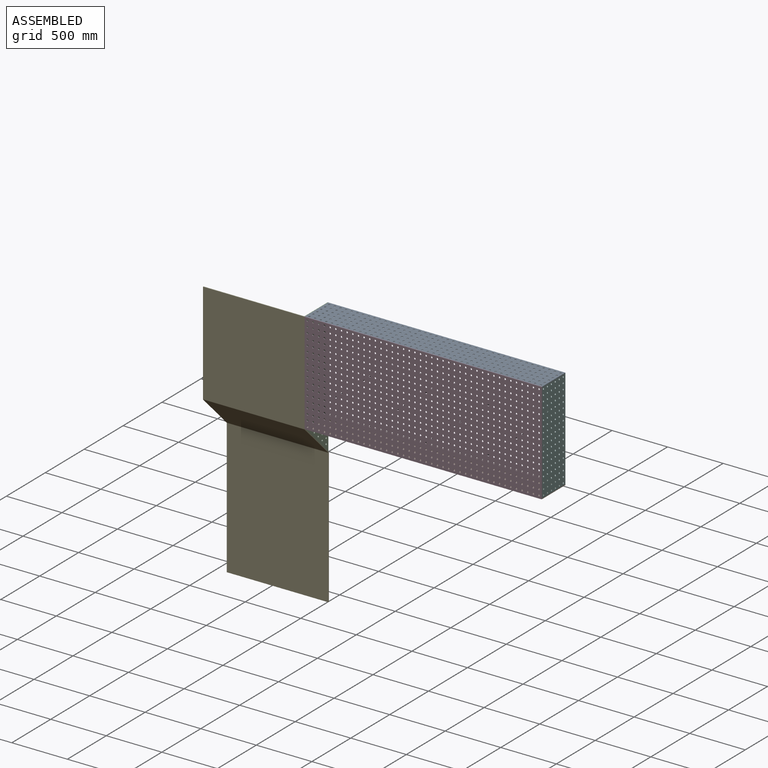
[diagram: assembled view]
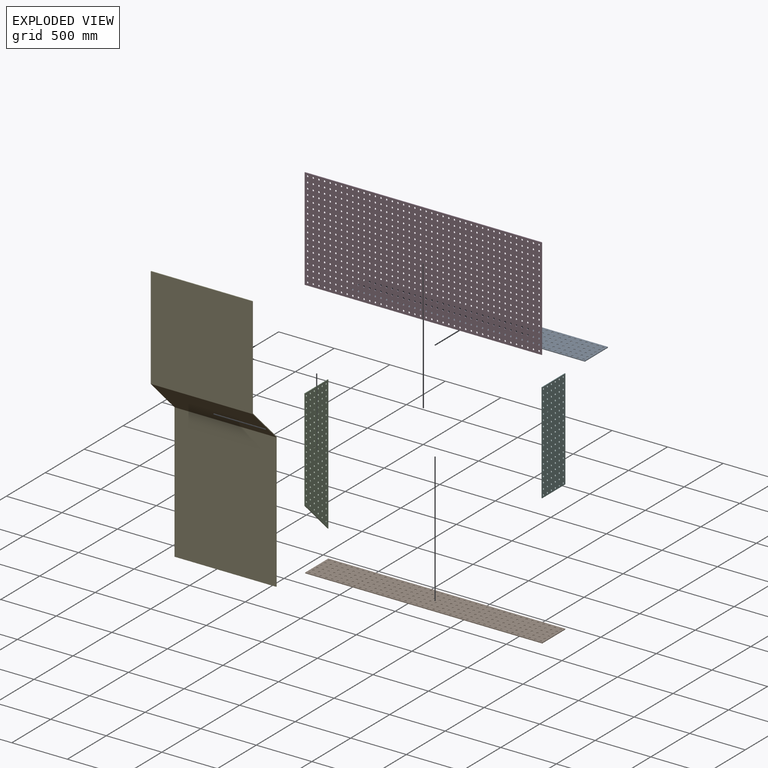
[diagram: exploded view]
GUIDED TOUR — MATED ASSEMBLY (Onshape document bd13b40252a290e772ede775, AutoMate assembly bd13b40252a290e772ede775_a63e4e533c33b9df257e314d_0b10ce5a8e47b3eec8f7a5ce_default)

This assembly has 6 components, labeled P0..P5 below (a component is one placed occurrence of a part; the same part can appear more than once), held together by 12 mates. A mate is a constraint between two components; its type names the relative motion it leaves free:
  PLANAR — leaves sliding in the plane through the listed point (normal = the listed direction) and rotation about that normal free.
Axis/direction vectors are unit vectors and 'through' points are millimeter coordinates, both in the assembly's world frame.

MATES
  1. PLANAR "Planar 6": P0 <-> P5, direction (1.000, 0.000, 0.000) through (711.90, -406.64, 899.76) mm
  2. PLANAR "Planar 7": P4 <-> P3, direction (1.000, 0.000, 0.000) through (-1421.70, -388.69, -308.83) mm
  3. PLANAR "Planar 5": P5 <-> P1, direction (0.000, 0.000, -1.000) through (708.72, -406.64, -5.11) mm
  4. PLANAR "Planar 4": P5 <-> P3, direction (0.000, -1.000, 0.000) through (708.72, -555.87, 445.74) mm
  5. PLANAR "Planar 1": P0 <-> P3, direction (0.000, -1.000, 0.000) through (-354.90, -555.87, 899.76) mm
  6. PLANAR "Planar 11": P3 <-> P4, direction (0.000, -1.000, 0.000) through (-1396.30, -562.22, 725.14) mm
  7. PLANAR "Planar 12": P2 <-> P0, direction (1.000, 0.000, 0.000) through (-1421.70, -384.42, 877.54) mm
  8. PLANAR "Planar 10": P2 <-> P0, direction (0.000, 0.000, 1.000) through (-1424.88, -406.64, 902.94) mm
  9. PLANAR "Planar 2": P3 <-> P0, direction (0.000, 0.000, 1.000) through (-354.90, -559.04, 902.94) mm
  10. PLANAR "Planar 9": P2 <-> P4, direction (0.000, -1.000, 0.000) through (-1424.88, -555.87, 445.74) mm
  11. PLANAR "Planar 8": P4 <-> P3, direction (0.000, 0.000, 1.000) through (-1878.90, -559.04, 902.94) mm
  12. PLANAR "Planar 3": P0 <-> P3, direction (-1.000, 0.000, 0.000) through (-1421.70, -555.87, 896.59) mm

ASSEMBLY ORDER
  1. P5 — the base component [order verified]
  2. P3 [order verified]
  3. P2 [order verified]
  4. P0 [order verified]
  5. P1 [order verified]
  6. P4 [order verified]
Order-tag legend:
  [order verified] — this step's position reverses a verified removal order: the component was checked to insert without passing through the ones already placed.

Of the 6 components, 6 carry the full construction recipe — the FeatureScript program that regenerates the part's solid from scratch; the rest are supplied as boundary geometry only.
Each toured component is shown spotlighted twice — in the assembled view, then in the exploded view, where a leader line traces a displaced component back to its assembled socket (saturated green if recipe-attached, orange if geometry-only; every other component desaturated gray) — followed by its recipe or geometry summary and the mates that hold it.
NOTE — this tour is split across 2 documents so each fits a 32k-token context. This is document 1: the component sections continue in the remaining 1 document, each repeating the header above.
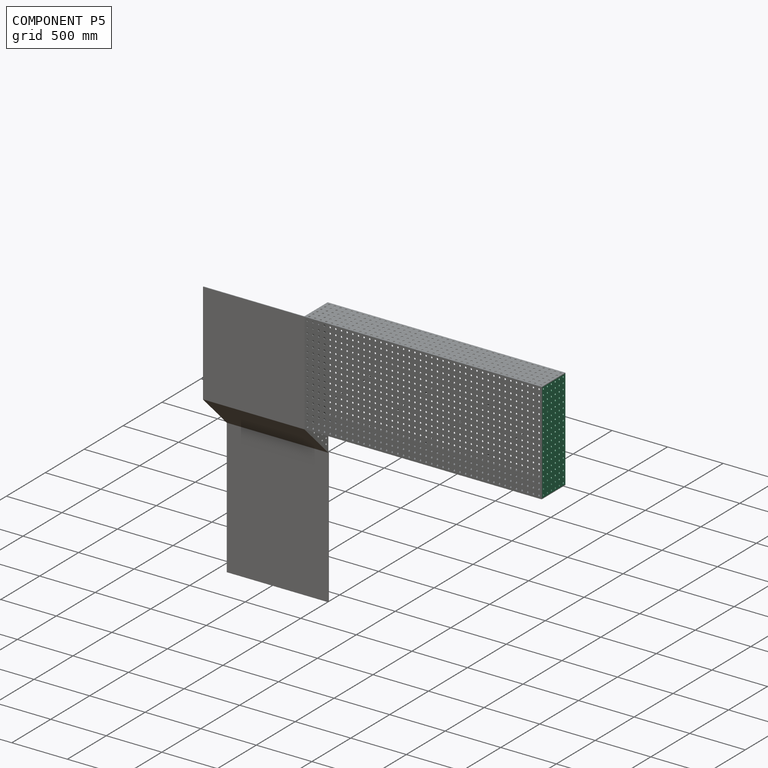
[diagram: component P5 — assembled]
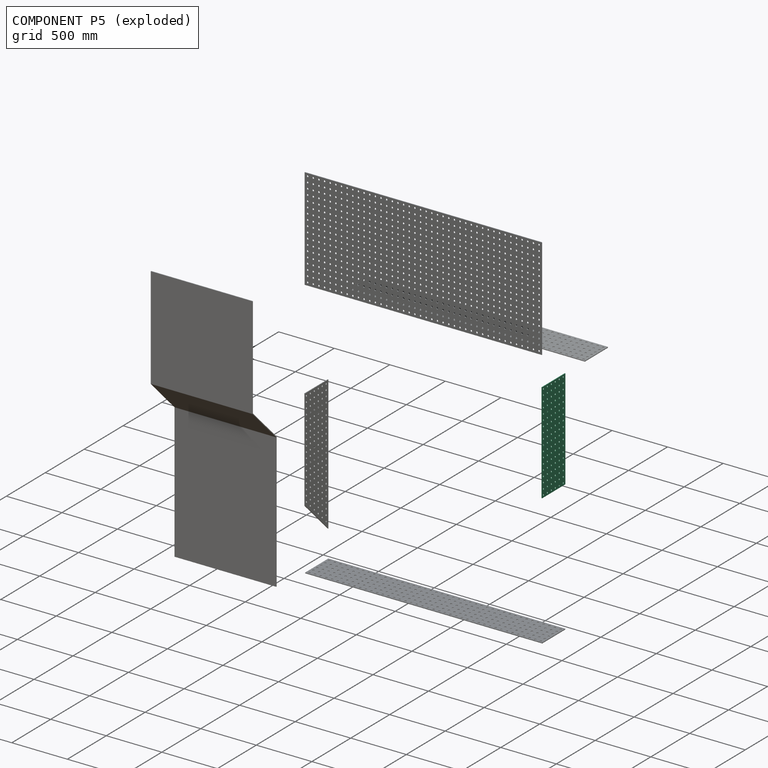
[diagram: component P5 — exploded]
COMPONENT P5 — recipe-attached (CADFS 00378627, mesh-verified: the recipe's output STEP matches this component's geometry to below the mesh-comparison resolution (tessellation chordal tolerance ~1.42 mm)).
Held by: PLANAR mate "Planar 6" to P0; PLANAR mate "Planar 5" to P1; PLANAR mate "Planar 4" to P3.
Construction recipe (FeatureScript — the CAD program that rebuilds this solid; sketch coordinates are in the units given by the * unit suffixes, e.g. mm):

FeatureScript 1511;
import(path : "onshape/std/geometry.fs", version : "1511.0");
import(path : "onshape/std/common.fs", version : "1511.0");
const mm = millimeter;
const VERTEX = EntityType.VERTEX;
const EDGE = EntityType.EDGE;
const FACE = EntityType.FACE;
const BODY = EntityType.BODY;
function v(x, y){return vector(x, y);}
function OD(order){return orderDisambiguation(order);}
function OSD(set){return originalSetDisambiguation(set);}
function TD(topology){return topologyDisambiguation(topology);}
function TDD(query){return trueDependencyDisambiguation(query);}
function sQuery(a, b, c) {return sketchEntityQuery(a, b, c);}

annotation { "Feature Type Name" : "Feature", "Feature Type Description" : "" }
export const myFeature = defineFeature(function(context is Context, id is Id, definition is map)
    precondition{}
    {
        {
            var Q0;
            Q0=qCreatedBy(makeId("Front.planeOp"),FACE);
            var sketch = newSketch(context, id + "F0", { "sketchPlane" : qUnion([Q0])});
            skLineSegment(sketch, "E0.bottom", {"start": v(450.85, 149.23) * mm, "end": v(-450.85, 149.23) * mm});
            skLineSegment(sketch, "E0.top", {"start": v(450.85, -149.23) * mm, "end": v(-450.85, -149.23) * mm});
            skLineSegment(sketch, "E0.left", {"start": v(450.85, 149.23) * mm, "end": v(450.85, -149.23) * mm});
            skLineSegment(sketch, "E0.right", {"start": v(-450.85, 149.23) * mm, "end": v(-450.85, -149.23) * mm});
            skPoint(sketch, "E0.middle", {"position": v(0, 0) * mm});
            skSolve(sketch);
        }
        {
            var Q0;
            Q0 = qSketchRegion(id + "F0", true);
            extrude(context, id + "F1", {"entities" : qUnion([Q0]), "endBound" : BoundingType.SYMMETRIC, "depth" : 6.35 * mm});
        }
        {
            var Q0;
            Q0=makeQuery(id+"F1.opExtrude","CAP_FACE",FACE,{"disambiguationData":[OSD([sQuery(id+"F0.wireOp",EDGE,"E0.bottom"),sQuery(id+"F0.wireOp",EDGE,"E0.top"),sQuery(id+"F0.wireOp",EDGE,"E0.left"),sQuery(id+"F0.wireOp",EDGE,"E0.right")])],"isStart":false});
            var sketch = newSketch(context, id + "F2", { "sketchPlane" : qUnion([Q0])});
            skCircle(sketch, "E1", {"center": v(-431.8, -123.83) * mm, "radius": 8 * mm});
            skCircle(sketch, "E2.0.1.0", {"center": v(-431.8, -73.03) * mm, "radius": 8 * mm});
            skCircle(sketch, "E2.0.2.0", {"center": v(-431.8, -22.22) * mm, "radius": 8 * mm});
            skCircle(sketch, "E2.0.3.0", {"center": v(-431.8, 28.58) * mm, "radius": 8 * mm});
            skCircle(sketch, "E2.0.4.0", {"center": v(-431.8, 79.38) * mm, "radius": 8 * mm});
            skCircle(sketch, "E2.0.5.0", {"center": v(-431.8, 130.18) * mm, "radius": 8 * mm});
            skCircle(sketch, "E2.1.0.0", {"center": v(-381, -123.83) * mm, "radius": 8 * mm});
            skCircle(sketch, "E2.1.1.0", {"center": v(-381, -73.03) * mm, "radius": 8 * mm});
            skCircle(sketch, "E2.1.2.0", {"center": v(-381, -22.22) * mm, "radius": 8 * mm});
            skCircle(sketch, "E2.1.3.0", {"center": v(-381, 28.58) * mm, "radius": 8 * mm});
            skCircle(sketch, "E2.1.4.0", {"center": v(-381, 79.38) * mm, "radius": 8 * mm});
            skCircle(sketch, "E2.1.5.0", {"center": v(-381, 130.18) * mm, "radius": 8 * mm});
            skCircle(sketch, "E2.2.0.0", {"center": v(-330.2, -123.83) * mm, "radius": 8 * mm});
            skCircle(sketch, "E2.2.1.0", {"center": v(-330.2, -73.03) * mm, "radius": 8 * mm});
            skCircle(sketch, "E2.2.2.0", {"center": v(-330.2, -22.22) * mm, "radius": 8 * mm});
            skCircle(sketch, "E2.2.3.0", {"center": v(-330.2, 28.58) * mm, "radius": 8 * mm});
            skCircle(sketch, "E2.2.4.0", {"center": v(-330.2, 79.38) * mm, "radius": 8 * mm});
            skCircle(sketch, "E2.2.5.0", {"center": v(-330.2, 130.18) * mm, "radius": 8 * mm});
            skCircle(sketch, "E2.3.0.0", {"center": v(-279.4, -123.83) * mm, "radius": 8 * mm});
            skCircle(sketch, "E2.3.1.0", {"center": v(-279.4, -73.03) * mm, "radius": 8 * mm});
            skCircle(sketch, "E2.3.2.0", {"center": v(-279.4, -22.22) * mm, "radius": 8 * mm});
            skCircle(sketch, "E2.3.3.0", {"center": v(-279.4, 28.58) * mm, "radius": 8 * mm});
            skCircle(sketch, "E2.3.4.0", {"center": v(-279.4, 79.38) * mm, "radius": 8 * mm});
            skCircle(sketch, "E2.3.5.0", {"center": v(-279.4, 130.18) * mm, "radius": 8 * mm});
            skCircle(sketch, "E2.4.0.0", {"center": v(-228.6, -123.83) * mm, "radius": 8 * mm});
            skCircle(sketch, "E2.4.1.0", {"center": v(-228.6, -73.03) * mm, "radius": 8 * mm});
            skCircle(sketch, "E2.4.2.0", {"center": v(-228.6, -22.22) * mm, "radius": 8 * mm});
            skCircle(sketch, "E2.4.3.0", {"center": v(-228.6, 28.58) * mm, "radius": 8 * mm});
            skCircle(sketch, "E2.4.4.0", {"center": v(-228.6, 79.38) * mm, "radius": 8 * mm});
            skCircle(sketch, "E2.4.5.0", {"center": v(-228.6, 130.18) * mm, "radius": 8 * mm});
            skCircle(sketch, "E2.5.0.0", {"center": v(-177.8, -123.83) * mm, "radius": 8 * mm});
            skCircle(sketch, "E2.5.1.0", {"center": v(-177.8, -73.03) * mm, "radius": 8 * mm});
            skCircle(sketch, "E2.5.2.0", {"center": v(-177.8, -22.22) * mm, "radius": 8 * mm});
            skCircle(sketch, "E2.5.3.0", {"center": v(-177.8, 28.58) * mm, "radius": 8 * mm});
            skCircle(sketch, "E2.5.4.0", {"center": v(-177.8, 79.38) * mm, "radius": 8 * mm});
            skCircle(sketch, "E2.5.5.0", {"center": v(-177.8, 130.18) * mm, "radius": 8 * mm});
            skCircle(sketch, "E2.6.0.0", {"center": v(-127, -123.83) * mm, "radius": 8 * mm});
            skCircle(sketch, "E2.6.1.0", {"center": v(-127, -73.03) * mm, "radius": 8 * mm});
            skCircle(sketch, "E2.6.2.0", {"center": v(-127, -22.22) * mm, "radius": 8 * mm});
            skCircle(sketch, "E2.6.3.0", {"center": v(-127, 28.58) * mm, "radius": 8 * mm});
            skCircle(sketch, "E2.6.4.0", {"center": v(-127, 79.38) * mm, "radius": 8 * mm});
            skCircle(sketch, "E2.6.5.0", {"center": v(-127, 130.18) * mm, "radius": 8 * mm});
            skCircle(sketch, "E2.7.0.0", {"center": v(-76.2, -123.83) * mm, "radius": 8 * mm});
            skCircle(sketch, "E2.7.1.0", {"center": v(-76.2, -73.03) * mm, "radius": 8 * mm});
            skCircle(sketch, "E2.7.2.0", {"center": v(-76.2, -22.22) * mm, "radius": 8 * mm});
            skCircle(sketch, "E2.7.3.0", {"center": v(-76.2, 28.58) * mm, "radius": 8 * mm});
            skCircle(sketch, "E2.7.4.0", {"center": v(-76.2, 79.38) * mm, "radius": 8 * mm});
            skCircle(sketch, "E2.7.5.0", {"center": v(-76.2, 130.18) * mm, "radius": 8 * mm});
            skCircle(sketch, "E2.8.0.0", {"center": v(-25.4, -123.83) * mm, "radius": 8 * mm});
            skCircle(sketch, "E2.8.1.0", {"center": v(-25.4, -73.03) * mm, "radius": 8 * mm});
            skCircle(sketch, "E2.8.2.0", {"center": v(-25.4, -22.22) * mm, "radius": 8 * mm});
            skCircle(sketch, "E2.8.3.0", {"center": v(-25.4, 28.58) * mm, "radius": 8 * mm});
            skCircle(sketch, "E2.8.4.0", {"center": v(-25.4, 79.38) * mm, "radius": 8 * mm});
            skCircle(sketch, "E2.8.5.0", {"center": v(-25.4, 130.18) * mm, "radius": 8 * mm});
            skCircle(sketch, "E2.9.0.0", {"center": v(25.4, -123.83) * mm, "radius": 8 * mm});
            skCircle(sketch, "E2.9.1.0", {"center": v(25.4, -73.03) * mm, "radius": 8 * mm});
            skCircle(sketch, "E2.9.2.0", {"center": v(25.4, -22.22) * mm, "radius": 8 * mm});
            skCircle(sketch, "E2.9.3.0", {"center": v(25.4, 28.58) * mm, "radius": 8 * mm});
            skCircle(sketch, "E2.9.4.0", {"center": v(25.4, 79.38) * mm, "radius": 8 * mm});
            skCircle(sketch, "E2.9.5.0", {"center": v(25.4, 130.18) * mm, "radius": 8 * mm});
            skCircle(sketch, "E2.10.0.0", {"center": v(76.2, -123.83) * mm, "radius": 8 * mm});
            skCircle(sketch, "E2.10.1.0", {"center": v(76.2, -73.03) * mm, "radius": 8 * mm});
            skCircle(sketch, "E2.10.2.0", {"center": v(76.2, -22.22) * mm, "radius": 8 * mm});
            skCircle(sketch, "E2.10.3.0", {"center": v(76.2, 28.58) * mm, "radius": 8 * mm});
            skCircle(sketch, "E2.10.4.0", {"center": v(76.2, 79.38) * mm, "radius": 8 * mm});
            skCircle(sketch, "E2.10.5.0", {"center": v(76.2, 130.18) * mm, "radius": 8 * mm});
            skCircle(sketch, "E2.11.0.0", {"center": v(127, -123.83) * mm, "radius": 8 * mm});
            skCircle(sketch, "E2.11.1.0", {"center": v(127, -73.03) * mm, "radius": 8 * mm});
            skCircle(sketch, "E2.11.2.0", {"center": v(127, -22.22) * mm, "radius": 8 * mm});
            skCircle(sketch, "E2.11.3.0", {"center": v(127, 28.58) * mm, "radius": 8 * mm});
            skCircle(sketch, "E2.11.4.0", {"center": v(127, 79.38) * mm, "radius": 8 * mm});
            skCircle(sketch, "E2.11.5.0", {"center": v(127, 130.18) * mm, "radius": 8 * mm});
            skCircle(sketch, "E2.12.0.0", {"center": v(177.8, -123.83) * mm, "radius": 8 * mm});
            skCircle(sketch, "E2.12.1.0", {"center": v(177.8, -73.03) * mm, "radius": 8 * mm});
            skCircle(sketch, "E2.12.2.0", {"center": v(177.8, -22.22) * mm, "radius": 8 * mm});
            skCircle(sketch, "E2.12.3.0", {"center": v(177.8, 28.58) * mm, "radius": 8 * mm});
            skCircle(sketch, "E2.12.4.0", {"center": v(177.8, 79.38) * mm, "radius": 8 * mm});
            skCircle(sketch, "E2.12.5.0", {"center": v(177.8, 130.18) * mm, "radius": 8 * mm});
            skCircle(sketch, "E2.13.0.0", {"center": v(228.6, -123.83) * mm, "radius": 8 * mm});
            skCircle(sketch, "E2.13.1.0", {"center": v(228.6, -73.03) * mm, "radius": 8 * mm});
            skCircle(sketch, "E2.13.2.0", {"center": v(228.6, -22.22) * mm, "radius": 8 * mm});
            skCircle(sketch, "E2.13.3.0", {"center": v(228.6, 28.58) * mm, "radius": 8 * mm});
            skCircle(sketch, "E2.13.4.0", {"center": v(228.6, 79.38) * mm, "radius": 8 * mm});
            skCircle(sketch, "E2.13.5.0", {"center": v(228.6, 130.18) * mm, "radius": 8 * mm});
            skCircle(sketch, "E2.14.0.0", {"center": v(279.4, -123.83) * mm, "radius": 8 * mm});
            skCircle(sketch, "E2.14.1.0", {"center": v(279.4, -73.03) * mm, "radius": 8 * mm});
            skCircle(sketch, "E2.14.2.0", {"center": v(279.4, -22.22) * mm, "radius": 8 * mm});
            skCircle(sketch, "E2.14.3.0", {"center": v(279.4, 28.58) * mm, "radius": 8 * mm});
            skCircle(sketch, "E2.14.4.0", {"center": v(279.4, 79.38) * mm, "radius": 8 * mm});
            skCircle(sketch, "E2.14.5.0", {"center": v(279.4, 130.18) * mm, "radius": 8 * mm});
            skCircle(sketch, "E2.15.0.0", {"center": v(330.2, -123.83) * mm, "radius": 8 * mm});
            skCircle(sketch, "E2.15.1.0", {"center": v(330.2, -73.03) * mm, "radius": 8 * mm});
            skCircle(sketch, "E2.15.2.0", {"center": v(330.2, -22.22) * mm, "radius": 8 * mm});
            skCircle(sketch, "E2.15.3.0", {"center": v(330.2, 28.58) * mm, "radius": 8 * mm});
            skCircle(sketch, "E2.15.4.0", {"center": v(330.2, 79.38) * mm, "radius": 8 * mm});
            skCircle(sketch, "E2.15.5.0", {"center": v(330.2, 130.18) * mm, "radius": 8 * mm});
            skCircle(sketch, "E2.16.0.0", {"center": v(381, -123.83) * mm, "radius": 8 * mm});
            skCircle(sketch, "E2.16.1.0", {"center": v(381, -73.03) * mm, "radius": 8 * mm});
            skCircle(sketch, "E2.16.2.0", {"center": v(381, -22.22) * mm, "radius": 8 * mm});
            skCircle(sketch, "E2.16.3.0", {"center": v(381, 28.58) * mm, "radius": 8 * mm});
            skCircle(sketch, "E2.16.4.0", {"center": v(381, 79.38) * mm, "radius": 8 * mm});
            skCircle(sketch, "E2.16.5.0", {"center": v(381, 130.18) * mm, "radius": 8 * mm});
            skCircle(sketch, "E2.17.0.0", {"center": v(431.8, -123.83) * mm, "radius": 8 * mm});
            skCircle(sketch, "E2.17.1.0", {"center": v(431.8, -73.03) * mm, "radius": 8 * mm});
            skCircle(sketch, "E2.17.2.0", {"center": v(431.8, -22.22) * mm, "radius": 8 * mm});
            skCircle(sketch, "E2.17.3.0", {"center": v(431.8, 28.58) * mm, "radius": 8 * mm});
            skCircle(sketch, "E2.17.4.0", {"center": v(431.8, 79.38) * mm, "radius": 8 * mm});
            skCircle(sketch, "E2.17.5.0", {"center": v(431.8, 130.18) * mm, "radius": 8 * mm});
            skLineSegment(sketch, "E2.direction1", {"start": v(-431.8, -123.83) * mm, "end": v(-381, -123.83) * mm, "construction": true});
            skLineSegment(sketch, "E2.direction2", {"start": v(-431.8, -123.83) * mm, "end": v(-431.8, -73.03) * mm, "construction": true});
            skSolve(sketch);
        }
        {
            var Q0;
            Q0 = qSketchRegion(id + "F2", true);
            extrude(context, id + "F3", {"entities" : qUnion([Q0]), "operationType" : NewBodyOperationType.REMOVE, "endBound" : BoundingType.THROUGH_ALL, "oppositeDirection" : true, "depth" : 25.4 * mm});
        }
    });
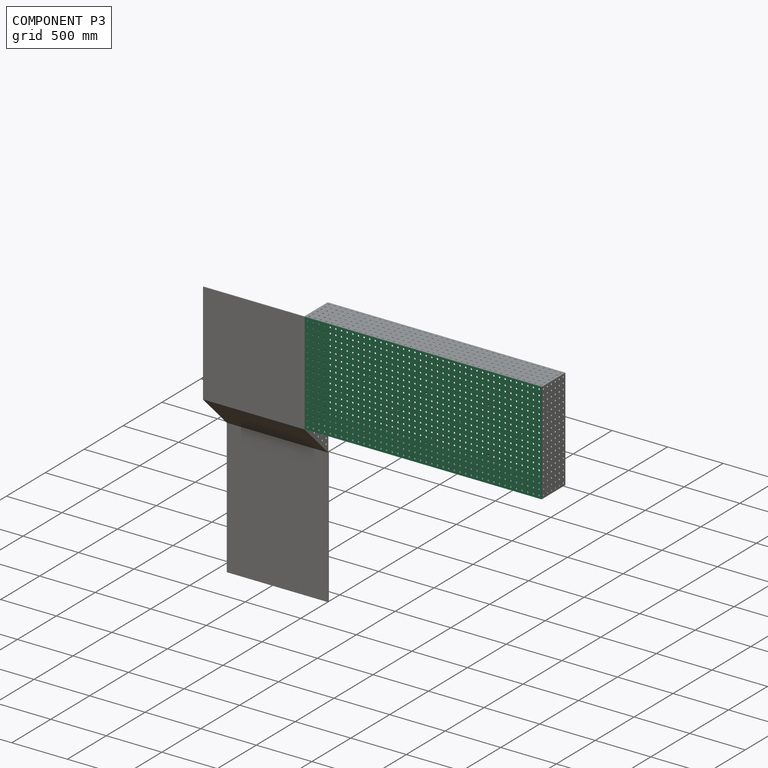
[diagram: component P3 — assembled]
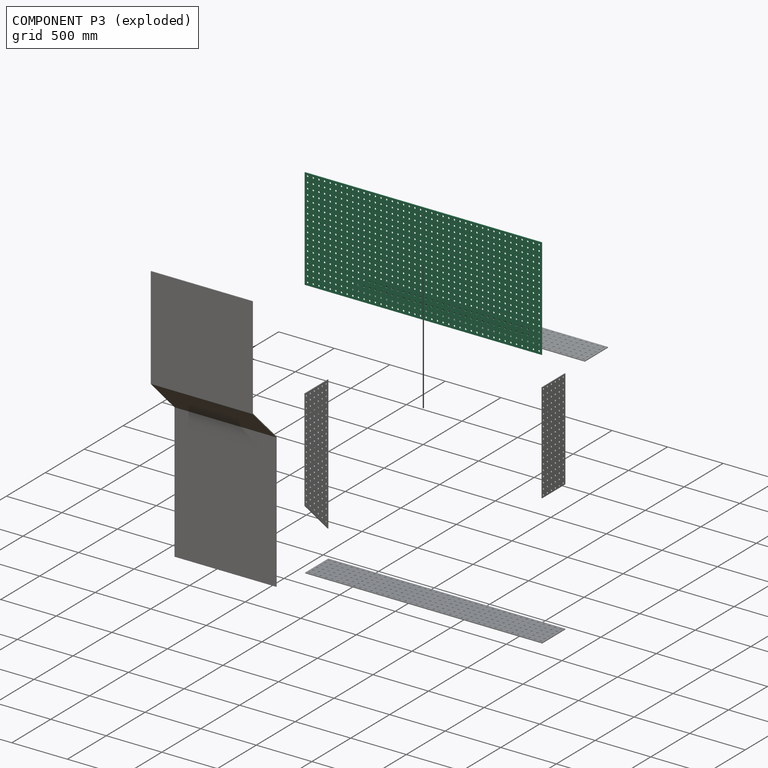
[diagram: component P3 — exploded]
COMPONENT P3 — recipe-attached (CADFS 00378625, mesh-verified: the recipe's output STEP matches this component's geometry to below the mesh-comparison resolution (tessellation chordal tolerance ~3.48 mm)).
Held by: PLANAR mate "Planar 7" to P4; PLANAR mate "Planar 4" to P5; PLANAR mate "Planar 1" to P0; PLANAR mate "Planar 11" to P4; PLANAR mate "Planar 2" to P0; PLANAR mate "Planar 8" to P4; PLANAR mate "Planar 3" to P0.
Construction recipe (FeatureScript — the CAD program that rebuilds this solid; sketch coordinates are in the units given by the * unit suffixes, e.g. mm):

FeatureScript 1511;
import(path : "onshape/std/geometry.fs", version : "1511.0");
import(path : "onshape/std/common.fs", version : "1511.0");
const mm = millimeter;
const VERTEX = EntityType.VERTEX;
const EDGE = EntityType.EDGE;
const FACE = EntityType.FACE;
const BODY = EntityType.BODY;
function v(x, y){return vector(x, y);}
function OD(order){return orderDisambiguation(order);}
function OSD(set){return originalSetDisambiguation(set);}
function TD(topology){return topologyDisambiguation(topology);}
function TDD(query){return trueDependencyDisambiguation(query);}
function sQuery(a, b, c) {return sketchEntityQuery(a, b, c);}

annotation { "Feature Type Name" : "Feature", "Feature Type Description" : "" }
export const myFeature = defineFeature(function(context is Context, id is Id, definition is map)
    precondition{}
    {
        {
            var Q0;
            Q0=qCreatedBy(makeId("Front.planeOp"),FACE);
            var sketch = newSketch(context, id + "F0", { "sketchPlane" : qUnion([Q0])});
            skLineSegment(sketch, "E0.bottom", {"start": v(1066.8, 457.2) * mm, "end": v(-1066.8, 457.2) * mm});
            skLineSegment(sketch, "E0.top", {"start": v(1066.8, -457.2) * mm, "end": v(-1066.8, -457.2) * mm});
            skLineSegment(sketch, "E0.left", {"start": v(1066.8, 457.2) * mm, "end": v(1066.8, -457.2) * mm});
            skLineSegment(sketch, "E0.right", {"start": v(-1066.8, 457.2) * mm, "end": v(-1066.8, -457.2) * mm});
            skPoint(sketch, "E0.middle", {"position": v(0, 0) * mm});
            skSolve(sketch);
        }
        {
            var Q0;
            Q0 = qSketchRegion(id + "F0", true);
            extrude(context, id + "F1", {"entities" : qUnion([Q0]), "endBound" : BoundingType.SYMMETRIC, "depth" : 6.35 * mm});
        }
        {
            var Q0;
            Q0=makeQuery(id+"F1.opExtrude","CAP_FACE",FACE,{"disambiguationData":[OSD([sQuery(id+"F0.wireOp",EDGE,"E0.bottom"),sQuery(id+"F0.wireOp",EDGE,"E0.top"),sQuery(id+"F0.wireOp",EDGE,"E0.left"),sQuery(id+"F0.wireOp",EDGE,"E0.right")])],"isStart":false});
            var sketch = newSketch(context, id + "F2", { "sketchPlane" : qUnion([Q0])});
            skCircle(sketch, "E1", {"center": v(-1041.4, -431.8) * mm, "radius": 8 * mm});
            skCircle(sketch, "E2.0.1.0", {"center": v(-1041.4, -381) * mm, "radius": 8 * mm});
            skCircle(sketch, "E2.0.2.0", {"center": v(-1041.4, -330.2) * mm, "radius": 8 * mm});
            skCircle(sketch, "E2.0.3.0", {"center": v(-1041.4, -279.4) * mm, "radius": 8 * mm});
            skCircle(sketch, "E2.0.4.0", {"center": v(-1041.4, -228.6) * mm, "radius": 8 * mm});
            skCircle(sketch, "E2.0.5.0", {"center": v(-1041.4, -177.8) * mm, "radius": 8 * mm});
            skCircle(sketch, "E2.0.6.0", {"center": v(-1041.4, -127) * mm, "radius": 8 * mm});
            skCircle(sketch, "E2.0.7.0", {"center": v(-1041.4, -76.2) * mm, "radius": 8 * mm});
            skCircle(sketch, "E2.0.8.0", {"center": v(-1041.4, -25.4) * mm, "radius": 8 * mm});
            skCircle(sketch, "E2.0.9.0", {"center": v(-1041.4, 25.4) * mm, "radius": 8 * mm});
            skCircle(sketch, "E2.0.10.0", {"center": v(-1041.4, 76.2) * mm, "radius": 8 * mm});
            skCircle(sketch, "E2.0.11.0", {"center": v(-1041.4, 127) * mm, "radius": 8 * mm});
            skCircle(sketch, "E2.0.12.0", {"center": v(-1041.4, 177.8) * mm, "radius": 8 * mm});
            skCircle(sketch, "E2.0.13.0", {"center": v(-1041.4, 228.6) * mm, "radius": 8 * mm});
            skCircle(sketch, "E2.0.14.0", {"center": v(-1041.4, 279.4) * mm, "radius": 8 * mm});
            skCircle(sketch, "E2.0.15.0", {"center": v(-1041.4, 330.2) * mm, "radius": 8 * mm});
            skCircle(sketch, "E2.0.16.0", {"center": v(-1041.4, 381) * mm, "radius": 8 * mm});
            skCircle(sketch, "E2.0.17.0", {"center": v(-1041.4, 431.8) * mm, "radius": 8 * mm});
            skCircle(sketch, "E2.1.0.0", {"center": v(-990.6, -431.8) * mm, "radius": 8 * mm});
            skCircle(sketch, "E2.1.1.0", {"center": v(-990.6, -381) * mm, "radius": 8 * mm});
            skCircle(sketch, "E2.1.2.0", {"center": v(-990.6, -330.2) * mm, "radius": 8 * mm});
            skCircle(sketch, "E2.1.3.0", {"center": v(-990.6, -279.4) * mm, "radius": 8 * mm});
            skCircle(sketch, "E2.1.4.0", {"center": v(-990.6, -228.6) * mm, "radius": 8 * mm});
            skCircle(sketch, "E2.1.5.0", {"center": v(-990.6, -177.8) * mm, "radius": 8 * mm});
            skCircle(sketch, "E2.1.6.0", {"center": v(-990.6, -127) * mm, "radius": 8 * mm});
            skCircle(sketch, "E2.1.7.0", {"center": v(-990.6, -76.2) * mm, "radius": 8 * mm});
            skCircle(sketch, "E2.1.8.0", {"center": v(-990.6, -25.4) * mm, "radius": 8 * mm});
            skCircle(sketch, "E2.1.9.0", {"center": v(-990.6, 25.4) * mm, "radius": 8 * mm});
            skCircle(sketch, "E2.1.10.0", {"center": v(-990.6, 76.2) * mm, "radius": 8 * mm});
            skCircle(sketch, "E2.1.11.0", {"center": v(-990.6, 127) * mm, "radius": 8 * mm});
            skCircle(sketch, "E2.1.12.0", {"center": v(-990.6, 177.8) * mm, "radius": 8 * mm});
            skCircle(sketch, "E2.1.13.0", {"center": v(-990.6, 228.6) * mm, "radius": 8 * mm});
            skCircle(sketch, "E2.1.14.0", {"center": v(-990.6, 279.4) * mm, "radius": 8 * mm});
            skCircle(sketch, "E2.1.15.0", {"center": v(-990.6, 330.2) * mm, "radius": 8 * mm});
            skCircle(sketch, "E2.1.16.0", {"center": v(-990.6, 381) * mm, "radius": 8 * mm});
            skCircle(sketch, "E2.1.17.0", {"center": v(-990.6, 431.8) * mm, "radius": 8 * mm});
            skCircle(sketch, "E2.2.0.0", {"center": v(-939.8, -431.8) * mm, "radius": 8 * mm});
            skCircle(sketch, "E2.2.1.0", {"center": v(-939.8, -381) * mm, "radius": 8 * mm});
            skCircle(sketch, "E2.2.2.0", {"center": v(-939.8, -330.2) * mm, "radius": 8 * mm});
            skCircle(sketch, "E2.2.3.0", {"center": v(-939.8, -279.4) * mm, "radius": 8 * mm});
            skCircle(sketch, "E2.2.4.0", {"center": v(-939.8, -228.6) * mm, "radius": 8 * mm});
            skCircle(sketch, "E2.2.5.0", {"center": v(-939.8, -177.8) * mm, "radius": 8 * mm});
            skCircle(sketch, "E2.2.6.0", {"center": v(-939.8, -127) * mm, "radius": 8 * mm});
            skCircle(sketch, "E2.2.7.0", {"center": v(-939.8, -76.2) * mm, "radius": 8 * mm});
            skCircle(sketch, "E2.2.8.0", {"center": v(-939.8, -25.4) * mm, "radius": 8 * mm});
            skCircle(sketch, "E2.2.9.0", {"center": v(-939.8, 25.4) * mm, "radius": 8 * mm});
            skCircle(sketch, "E2.2.10.0", {"center": v(-939.8, 76.2) * mm, "radius": 8 * mm});
            skCircle(sketch, "E2.2.11.0", {"center": v(-939.8, 127) * mm, "radius": 8 * mm});
            skCircle(sketch, "E2.2.12.0", {"center": v(-939.8, 177.8) * mm, "radius": 8 * mm});
            skCircle(sketch, "E2.2.13.0", {"center": v(-939.8, 228.6) * mm, "radius": 8 * mm});
            skCircle(sketch, "E2.2.14.0", {"center": v(-939.8, 279.4) * mm, "radius": 8 * mm});
            skCircle(sketch, "E2.2.15.0", {"center": v(-939.8, 330.2) * mm, "radius": 8 * mm});
            skCircle(sketch, "E2.2.16.0", {"center": v(-939.8, 381) * mm, "radius": 8 * mm});
            skCircle(sketch, "E2.2.17.0", {"center": v(-939.8, 431.8) * mm, "radius": 8 * mm});
            skCircle(sketch, "E2.3.0.0", {"center": v(-889, -431.8) * mm, "radius": 8 * mm});
            skCircle(sketch, "E2.3.1.0", {"center": v(-889, -381) * mm, "radius": 8 * mm});
            skCircle(sketch, "E2.3.2.0", {"center": v(-889, -330.2) * mm, "radius": 8 * mm});
            skCircle(sketch, "E2.3.3.0", {"center": v(-889, -279.4) * mm, "radius": 8 * mm});
            skCircle(sketch, "E2.3.4.0", {"center": v(-889, -228.6) * mm, "radius": 8 * mm});
            skCircle(sketch, "E2.3.5.0", {"center": v(-889, -177.8) * mm, "radius": 8 * mm});
            skCircle(sketch, "E2.3.6.0", {"center": v(-889, -127) * mm, "radius": 8 * mm});
            skCircle(sketch, "E2.3.7.0", {"center": v(-889, -76.2) * mm, "radius": 8 * mm});
            skCircle(sketch, "E2.3.8.0", {"center": v(-889, -25.4) * mm, "radius": 8 * mm});
            skCircle(sketch, "E2.3.9.0", {"center": v(-889, 25.4) * mm, "radius": 8 * mm});
            skCircle(sketch, "E2.3.10.0", {"center": v(-889, 76.2) * mm, "radius": 8 * mm});
            skCircle(sketch, "E2.3.11.0", {"center": v(-889, 127) * mm, "radius": 8 * mm});
            skCircle(sketch, "E2.3.12.0", {"center": v(-889, 177.8) * mm, "radius": 8 * mm});
            skCircle(sketch, "E2.3.13.0", {"center": v(-889, 228.6) * mm, "radius": 8 * mm});
            skCircle(sketch, "E2.3.14.0", {"center": v(-889, 279.4) * mm, "radius": 8 * mm});
            skCircle(sketch, "E2.3.15.0", {"center": v(-889, 330.2) * mm, "radius": 8 * mm});
            skCircle(sketch, "E2.3.16.0", {"center": v(-889, 381) * mm, "radius": 8 * mm});
            skCircle(sketch, "E2.3.17.0", {"center": v(-889, 431.8) * mm, "radius": 8 * mm});
            skCircle(sketch, "E2.4.0.0", {"center": v(-838.2, -431.8) * mm, "radius": 8 * mm});
            skCircle(sketch, "E2.4.1.0", {"center": v(-838.2, -381) * mm, "radius": 8 * mm});
            skCircle(sketch, "E2.4.2.0", {"center": v(-838.2, -330.2) * mm, "radius": 8 * mm});
            skCircle(sketch, "E2.4.3.0", {"center": v(-838.2, -279.4) * mm, "radius": 8 * mm});
            skCircle(sketch, "E2.4.4.0", {"center": v(-838.2, -228.6) * mm, "radius": 8 * mm});
            skCircle(sketch, "E2.4.5.0", {"center": v(-838.2, -177.8) * mm, "radius": 8 * mm});
            skCircle(sketch, "E2.4.6.0", {"center": v(-838.2, -127) * mm, "radius": 8 * mm});
            skCircle(sketch, "E2.4.7.0", {"center": v(-838.2, -76.2) * mm, "radius": 8 * mm});
            skCircle(sketch, "E2.4.8.0", {"center": v(-838.2, -25.4) * mm, "radius": 8 * mm});
            skCircle(sketch, "E2.4.9.0", {"center": v(-838.2, 25.4) * mm, "radius": 8 * mm});
            skCircle(sketch, "E2.4.10.0", {"center": v(-838.2, 76.2) * mm, "radius": 8 * mm});
            skCircle(sketch, "E2.4.11.0", {"center": v(-838.2, 127) * mm, "radius": 8 * mm});
            skCircle(sketch, "E2.4.12.0", {"center": v(-838.2, 177.8) * mm, "radius": 8 * mm});
            skCircle(sketch, "E2.4.13.0", {"center": v(-838.2, 228.6) * mm, "radius": 8 * mm});
            skCircle(sketch, "E2.4.14.0", {"center": v(-838.2, 279.4) * mm, "radius": 8 * mm});
            skCircle(sketch, "E2.4.15.0", {"center": v(-838.2, 330.2) * mm, "radius": 8 * mm});
            skCircle(sketch, "E2.4.16.0", {"center": v(-838.2, 381) * mm, "radius": 8 * mm});
            skCircle(sketch, "E2.4.17.0", {"center": v(-838.2, 431.8) * mm, "radius": 8 * mm});
            skCircle(sketch, "E2.5.0.0", {"center": v(-787.4, -431.8) * mm, "radius": 8 * mm});
            skCircle(sketch, "E2.5.1.0", {"center": v(-787.4, -381) * mm, "radius": 8 * mm});
            skCircle(sketch, "E2.5.2.0", {"center": v(-787.4, -330.2) * mm, "radius": 8 * mm});
            skCircle(sketch, "E2.5.3.0", {"center": v(-787.4, -279.4) * mm, "radius": 8 * mm});
            skCircle(sketch, "E2.5.4.0", {"center": v(-787.4, -228.6) * mm, "radius": 8 * mm});
            skCircle(sketch, "E2.5.5.0", {"center": v(-787.4, -177.8) * mm, "radius": 8 * mm});
            skCircle(sketch, "E2.5.6.0", {"center": v(-787.4, -127) * mm, "radius": 8 * mm});
            skCircle(sketch, "E2.5.7.0", {"center": v(-787.4, -76.2) * mm, "radius": 8 * mm});
            skCircle(sketch, "E2.5.8.0", {"center": v(-787.4, -25.4) * mm, "radius": 8 * mm});
            skCircle(sketch, "E2.5.9.0", {"center": v(-787.4, 25.4) * mm, "radius": 8 * mm});
            skCircle(sketch, "E2.5.10.0", {"center": v(-787.4, 76.2) * mm, "radius": 8 * mm});
            skCircle(sketch, "E2.5.11.0", {"center": v(-787.4, 127) * mm, "radius": 8 * mm});
            skCircle(sketch, "E2.5.12.0", {"center": v(-787.4, 177.8) * mm, "radius": 8 * mm});
            skCircle(sketch, "E2.5.13.0", {"center": v(-787.4, 228.6) * mm, "radius": 8 * mm});
            skCircle(sketch, "E2.5.14.0", {"center": v(-787.4, 279.4) * mm, "radius": 8 * mm});
            skCircle(sketch, "E2.5.15.0", {"center": v(-787.4, 330.2) * mm, "radius": 8 * mm});
            skCircle(sketch, "E2.5.16.0", {"center": v(-787.4, 381) * mm, "radius": 8 * mm});
            skCircle(sketch, "E2.5.17.0", {"center": v(-787.4, 431.8) * mm, "radius": 8 * mm});
            skCircle(sketch, "E2.6.0.0", {"center": v(-736.6, -431.8) * mm, "radius": 8 * mm});
            skCircle(sketch, "E2.6.1.0", {"center": v(-736.6, -381) * mm, "radius": 8 * mm});
            skCircle(sketch, "E2.6.2.0", {"center": v(-736.6, -330.2) * mm, "radius": 8 * mm});
            skCircle(sketch, "E2.6.3.0", {"center": v(-736.6, -279.4) * mm, "radius": 8 * mm});
            skCircle(sketch, "E2.6.4.0", {"center": v(-736.6, -228.6) * mm, "radius": 8 * mm});
            skCircle(sketch, "E2.6.5.0", {"center": v(-736.6, -177.8) * mm, "radius": 8 * mm});
            skCircle(sketch, "E2.6.6.0", {"center": v(-736.6, -127) * mm, "radius": 8 * mm});
            skCircle(sketch, "E2.6.7.0", {"center": v(-736.6, -76.2) * mm, "radius": 8 * mm});
            skCircle(sketch, "E2.6.8.0", {"center": v(-736.6, -25.4) * mm, "radius": 8 * mm});
            skCircle(sketch, "E2.6.9.0", {"center": v(-736.6, 25.4) * mm, "radius": 8 * mm});
            skCircle(sketch, "E2.6.10.0", {"center": v(-736.6, 76.2) * mm, "radius": 8 * mm});
            skCircle(sketch, "E2.6.11.0", {"center": v(-736.6, 127) * mm, "radius": 8 * mm});
            skCircle(sketch, "E2.6.12.0", {"center": v(-736.6, 177.8) * mm, "radius": 8 * mm});
            skCircle(sketch, "E2.6.13.0", {"center": v(-736.6, 228.6) * mm, "radius": 8 * mm});
            skCircle(sketch, "E2.6.14.0", {"center": v(-736.6, 279.4) * mm, "radius": 8 * mm});
            skCircle(sketch, "E2.6.15.0", {"center": v(-736.6, 330.2) * mm, "radius": 8 * mm});
            skCircle(sketch, "E2.6.16.0", {"center": v(-736.6, 381) * mm, "radius": 8 * mm});
            skCircle(sketch, "E2.6.17.0", {"center": v(-736.6, 431.8) * mm, "radius": 8 * mm});
            skCircle(sketch, "E2.7.0.0", {"center": v(-685.8, -431.8) * mm, "radius": 8 * mm});
            skCircle(sketch, "E2.7.1.0", {"center": v(-685.8, -381) * mm, "radius": 8 * mm});
            skCircle(sketch, "E2.7.2.0", {"center": v(-685.8, -330.2) * mm, "radius": 8 * mm});
            skCircle(sketch, "E2.7.3.0", {"center": v(-685.8, -279.4) * mm, "radius": 8 * mm});
            skCircle(sketch, "E2.7.4.0", {"center": v(-685.8, -228.6) * mm, "radius": 8 * mm});
            skCircle(sketch, "E2.7.5.0", {"center": v(-685.8, -177.8) * mm, "radius": 8 * mm});
            skCircle(sketch, "E2.7.6.0", {"center": v(-685.8, -127) * mm, "radius": 8 * mm});
            skCircle(sketch, "E2.7.7.0", {"center": v(-685.8, -76.2) * mm, "radius": 8 * mm});
            skCircle(sketch, "E2.7.8.0", {"center": v(-685.8, -25.4) * mm, "radius": 8 * mm});
            skCircle(sketch, "E2.7.9.0", {"center": v(-685.8, 25.4) * mm, "radius": 8 * mm});
            skCircle(sketch, "E2.7.10.0", {"center": v(-685.8, 76.2) * mm, "radius": 8 * mm});
            skCircle(sketch, "E2.7.11.0", {"center": v(-685.8, 127) * mm, "radius": 8 * mm});
            skCircle(sketch, "E2.7.12.0", {"center": v(-685.8, 177.8) * mm, "radius": 8 * mm});
            skCircle(sketch, "E2.7.13.0", {"center": v(-685.8, 228.6) * mm, "radius": 8 * mm});
            skCircle(sketch, "E2.7.14.0", {"center": v(-685.8, 279.4) * mm, "radius": 8 * mm});
            skCircle(sketch, "E2.7.15.0", {"center": v(-685.8, 330.2) * mm, "radius": 8 * mm});
            skCircle(sketch, "E2.7.16.0", {"center": v(-685.8, 381) * mm, "radius": 8 * mm});
            skCircle(sketch, "E2.7.17.0", {"center": v(-685.8, 431.8) * mm, "radius": 8 * mm});
            skCircle(sketch, "E2.8.0.0", {"center": v(-635, -431.8) * mm, "radius": 8 * mm});
            skCircle(sketch, "E2.8.1.0", {"center": v(-635, -381) * mm, "radius": 8 * mm});
            skCircle(sketch, "E2.8.2.0", {"center": v(-635, -330.2) * mm, "radius": 8 * mm});
            skCircle(sketch, "E2.8.3.0", {"center": v(-635, -279.4) * mm, "radius": 8 * mm});
            skCircle(sketch, "E2.8.4.0", {"center": v(-635, -228.6) * mm, "radius": 8 * mm});
            skCircle(sketch, "E2.8.5.0", {"center": v(-635, -177.8) * mm, "radius": 8 * mm});
            skCircle(sketch, "E2.8.6.0", {"center": v(-635, -127) * mm, "radius": 8 * mm});
            skCircle(sketch, "E2.8.7.0", {"center": v(-635, -76.2) * mm, "radius": 8 * mm});
            skCircle(sketch, "E2.8.8.0", {"center": v(-635, -25.4) * mm, "radius": 8 * mm});
            skCircle(sketch, "E2.8.9.0", {"center": v(-635, 25.4) * mm, "radius": 8 * mm});
            skCircle(sketch, "E2.8.10.0", {"center": v(-635, 76.2) * mm, "radius": 8 * mm});
            skCircle(sketch, "E2.8.11.0", {"center": v(-635, 127) * mm, "radius": 8 * mm});
            skCircle(sketch, "E2.8.12.0", {"center": v(-635, 177.8) * mm, "radius": 8 * mm});
            skCircle(sketch, "E2.8.13.0", {"center": v(-635, 228.6) * mm, "radius": 8 * mm});
            skCircle(sketch, "E2.8.14.0", {"center": v(-635, 279.4) * mm, "radius": 8 * mm});
            skCircle(sketch, "E2.8.15.0", {"center": v(-635, 330.2) * mm, "radius": 8 * mm});
            skCircle(sketch, "E2.8.16.0", {"center": v(-635, 381) * mm, "radius": 8 * mm});
            skCircle(sketch, "E2.8.17.0", {"center": v(-635, 431.8) * mm, "radius": 8 * mm});
            skCircle(sketch, "E2.9.0.0", {"center": v(-584.2, -431.8) * mm, "radius": 8 * mm});
            skCircle(sketch, "E2.9.1.0", {"center": v(-584.2, -381) * mm, "radius": 8 * mm});
            skCircle(sketch, "E2.9.2.0", {"center": v(-584.2, -330.2) * mm, "radius": 8 * mm});
            skCircle(sketch, "E2.9.3.0", {"center": v(-584.2, -279.4) * mm, "radius": 8 * mm});
            skCircle(sketch, "E2.9.4.0", {"center": v(-584.2, -228.6) * mm, "radius": 8 * mm});
            skCircle(sketch, "E2.9.5.0", {"center": v(-584.2, -177.8) * mm, "radius": 8 * mm});
            skCircle(sketch, "E2.9.6.0", {"center": v(-584.2, -127) * mm, "radius": 8 * mm});
            skCircle(sketch, "E2.9.7.0", {"center": v(-584.2, -76.2) * mm, "radius": 8 * mm});
            skCircle(sketch, "E2.9.8.0", {"center": v(-584.2, -25.4) * mm, "radius": 8 * mm});
            skCircle(sketch, "E2.9.9.0", {"center": v(-584.2, 25.4) * mm, "radius": 8 * mm});
            skCircle(sketch, "E2.9.10.0", {"center": v(-584.2, 76.2) * mm, "radius": 8 * mm});
            skCircle(sketch, "E2.9.11.0", {"center": v(-584.2, 127) * mm, "radius": 8 * mm});
            skCircle(sketch, "E2.9.12.0", {"center": v(-584.2, 177.8) * mm, "radius": 8 * mm});
            skCircle(sketch, "E2.9.13.0", {"center": v(-584.2, 228.6) * mm, "radius": 8 * mm});
            skCircle(sketch, "E2.9.14.0", {"center": v(-584.2, 279.4) * mm, "radius": 8 * mm});
            skCircle(sketch, "E2.9.15.0", {"center": v(-584.2, 330.2) * mm, "radius": 8 * mm});
            skCircle(sketch, "E2.9.16.0", {"center": v(-584.2, 381) * mm, "radius": 8 * mm});
            skCircle(sketch, "E2.9.17.0", {"center": v(-584.2, 431.8) * mm, "radius": 8 * mm});
            skCircle(sketch, "E2.10.0.0", {"center": v(-533.4, -431.8) * mm, "radius": 8 * mm});
            skCircle(sketch, "E2.10.1.0", {"center": v(-533.4, -381) * mm, "radius": 8 * mm});
            skCircle(sketch, "E2.10.2.0", {"center": v(-533.4, -330.2) * mm, "radius": 8 * mm});
            skCircle(sketch, "E2.10.3.0", {"center": v(-533.4, -279.4) * mm, "radius": 8 * mm});
            skCircle(sketch, "E2.10.4.0", {"center": v(-533.4, -228.6) * mm, "radius": 8 * mm});
            skCircle(sketch, "E2.10.5.0", {"center": v(-533.4, -177.8) * mm, "radius": 8 * mm});
            skCircle(sketch, "E2.10.6.0", {"center": v(-533.4, -127) * mm, "radius": 8 * mm});
            skCircle(sketch, "E2.10.7.0", {"center": v(-533.4, -76.2) * mm, "radius": 8 * mm});
            skCircle(sketch, "E2.10.8.0", {"center": v(-533.4, -25.4) * mm, "radius": 8 * mm});
            skCircle(sketch, "E2.10.9.0", {"center": v(-533.4, 25.4) * mm, "radius": 8 * mm});
            skCircle(sketch, "E2.10.10.0", {"center": v(-533.4, 76.2) * mm, "radius": 8 * mm});
            skCircle(sketch, "E2.10.11.0", {"center": v(-533.4, 127) * mm, "radius": 8 * mm});
            skCircle(sketch, "E2.10.12.0", {"center": v(-533.4, 177.8) * mm, "radius": 8 * mm});
            skCircle(sketch, "E2.10.13.0", {"center": v(-533.4, 228.6) * mm, "radius": 8 * mm});
            skCircle(sketch, "E2.10.14.0", {"center": v(-533.4, 279.4) * mm, "radius": 8 * mm});
            skCircle(sketch, "E2.10.15.0", {"center": v(-533.4, 330.2) * mm, "radius": 8 * mm});
            skCircle(sketch, "E2.10.16.0", {"center": v(-533.4, 381) * mm, "radius": 8 * mm});
            skCircle(sketch, "E2.10.17.0", {"center": v(-533.4, 431.8) * mm, "radius": 8 * mm});
            skCircle(sketch, "E2.11.0.0", {"center": v(-482.6, -431.8) * mm, "radius": 8 * mm});
            skCircle(sketch, "E2.11.1.0", {"center": v(-482.6, -381) * mm, "radius": 8 * mm});
            skCircle(sketch, "E2.11.2.0", {"center": v(-482.6, -330.2) * mm, "radius": 8 * mm});
            skCircle(sketch, "E2.11.3.0", {"center": v(-482.6, -279.4) * mm, "radius": 8 * mm});
            skCircle(sketch, "E2.11.4.0", {"center": v(-482.6, -228.6) * mm, "radius": 8 * mm});
            skCircle(sketch, "E2.11.5.0", {"center": v(-482.6, -177.8) * mm, "radius": 8 * mm});
            skCircle(sketch, "E2.11.6.0", {"center": v(-482.6, -127) * mm, "radius": 8 * mm});
            skCircle(sketch, "E2.11.7.0", {"center": v(-482.6, -76.2) * mm, "radius": 8 * mm});
            skCircle(sketch, "E2.11.8.0", {"center": v(-482.6, -25.4) * mm, "radius": 8 * mm});
            skCircle(sketch, "E2.11.9.0", {"center": v(-482.6, 25.4) * mm, "radius": 8 * mm});
            skCircle(sketch, "E2.11.10.0", {"center": v(-482.6, 76.2) * mm, "radius": 8 * mm});
            skCircle(sketch, "E2.11.11.0", {"center": v(-482.6, 127) * mm, "radius": 8 * mm});
            skCircle(sketch, "E2.11.12.0", {"center": v(-482.6, 177.8) * mm, "radius": 8 * mm});
            skCircle(sketch, "E2.11.13.0", {"center": v(-482.6, 228.6) * mm, "radius": 8 * mm});
            skCircle(sketch, "E2.11.14.0", {"center": v(-482.6, 279.4) * mm, "radius": 8 * mm});
            skCircle(sketch, "E2.11.15.0", {"center": v(-482.6, 330.2) * mm, "radius": 8 * mm});
            skCircle(sketch, "E2.11.16.0", {"center": v(-482.6, 381) * mm, "radius": 8 * mm});
            skCircle(sketch, "E2.11.17.0", {"center": v(-482.6, 431.8) * mm, "radius": 8 * mm});
            skCircle(sketch, "E2.12.0.0", {"center": v(-431.8, -431.8) * mm, "radius": 8 * mm});
            skCircle(sketch, "E2.12.1.0", {"center": v(-431.8, -381) * mm, "radius": 8 * mm});
            skCircle(sketch, "E2.12.2.0", {"center": v(-431.8, -330.2) * mm, "radius": 8 * mm});
            skCircle(sketch, "E2.12.3.0", {"center": v(-431.8, -279.4) * mm, "radius": 8 * mm});
            skCircle(sketch, "E2.12.4.0", {"center": v(-431.8, -228.6) * mm, "radius": 8 * mm});
            skCircle(sketch, "E2.12.5.0", {"center": v(-431.8, -177.8) * mm, "radius": 8 * mm});
            skCircle(sketch, "E2.12.6.0", {"center": v(-431.8, -127) * mm, "radius": 8 * mm});
            skCircle(sketch, "E2.12.7.0", {"center": v(-431.8, -76.2) * mm, "radius": 8 * mm});
            skCircle(sketch, "E2.12.8.0", {"center": v(-431.8, -25.4) * mm, "radius": 8 * mm});
            skCircle(sketch, "E2.12.9.0", {"center": v(-431.8, 25.4) * mm, "radius": 8 * mm});
            skCircle(sketch, "E2.12.10.0", {"center": v(-431.8, 76.2) * mm, "radius": 8 * mm});
            skCircle(sketch, "E2.12.11.0", {"center": v(-431.8, 127) * mm, "radius": 8 * mm});
            skCircle(sketch, "E2.12.12.0", {"center": v(-431.8, 177.8) * mm, "radius": 8 * mm});
            skCircle(sketch, "E2.12.13.0", {"center": v(-431.8, 228.6) * mm, "radius": 8 * mm});
            skCircle(sketch, "E2.12.14.0", {"center": v(-431.8, 279.4) * mm, "radius": 8 * mm});
            skCircle(sketch, "E2.12.15.0", {"center": v(-431.8, 330.2) * mm, "radius": 8 * mm});
            skCircle(sketch, "E2.12.16.0", {"center": v(-431.8, 381) * mm, "radius": 8 * mm});
            skCircle(sketch, "E2.12.17.0", {"center": v(-431.8, 431.8) * mm, "radius": 8 * mm});
            skCircle(sketch, "E2.13.0.0", {"center": v(-381, -431.8) * mm, "radius": 8 * mm});
            skCircle(sketch, "E2.13.1.0", {"center": v(-381, -381) * mm, "radius": 8 * mm});
            skCircle(sketch, "E2.13.2.0", {"center": v(-381, -330.2) * mm, "radius": 8 * mm});
            skCircle(sketch, "E2.13.3.0", {"center": v(-381, -279.4) * mm, "radius": 8 * mm});
            skCircle(sketch, "E2.13.4.0", {"center": v(-381, -228.6) * mm, "radius": 8 * mm});
            skCircle(sketch, "E2.13.5.0", {"center": v(-381, -177.8) * mm, "radius": 8 * mm});
            skCircle(sketch, "E2.13.6.0", {"center": v(-381, -127) * mm, "radius": 8 * mm});
            skCircle(sketch, "E2.13.7.0", {"center": v(-381, -76.2) * mm, "radius": 8 * mm});
            skCircle(sketch, "E2.13.8.0", {"center": v(-381, -25.4) * mm, "radius": 8 * mm});
            skCircle(sketch, "E2.13.9.0", {"center": v(-381, 25.4) * mm, "radius": 8 * mm});
            skCircle(sketch, "E2.13.10.0", {"center": v(-381, 76.2) * mm, "radius": 8 * mm});
            skCircle(sketch, "E2.13.11.0", {"center": v(-381, 127) * mm, "radius": 8 * mm});
            skCircle(sketch, "E2.13.12.0", {"center": v(-381, 177.8) * mm, "radius": 8 * mm});
            skCircle(sketch, "E2.13.13.0", {"center": v(-381, 228.6) * mm, "radius": 8 * mm});
            skCircle(sketch, "E2.13.14.0", {"center": v(-381, 279.4) * mm, "radius": 8 * mm});
            skCircle(sketch, "E2.13.15.0", {"center": v(-381, 330.2) * mm, "radius": 8 * mm});
            skCircle(sketch, "E2.13.16.0", {"center": v(-381, 381) * mm, "radius": 8 * mm});
            skCircle(sketch, "E2.13.17.0", {"center": v(-381, 431.8) * mm, "radius": 8 * mm});
            skCircle(sketch, "E2.14.0.0", {"center": v(-330.2, -431.8) * mm, "radius": 8 * mm});
            skCircle(sketch, "E2.14.1.0", {"center": v(-330.2, -381) * mm, "radius": 8 * mm});
            skCircle(sketch, "E2.14.2.0", {"center": v(-330.2, -330.2) * mm, "radius": 8 * mm});
            skCircle(sketch, "E2.14.3.0", {"center": v(-330.2, -279.4) * mm, "radius": 8 * mm});
            skCircle(sketch, "E2.14.4.0", {"center": v(-330.2, -228.6) * mm, "radius": 8 * mm});
            skCircle(sketch, "E2.14.5.0", {"center": v(-330.2, -177.8) * mm, "radius": 8 * mm});
            skCircle(sketch, "E2.14.6.0", {"center": v(-330.2, -127) * mm, "radius": 8 * mm});
            skCircle(sketch, "E2.14.7.0", {"center": v(-330.2, -76.2) * mm, "radius": 8 * mm});
            skCircle(sketch, "E2.14.8.0", {"center": v(-330.2, -25.4) * mm, "radius": 8 * mm});
            skCircle(sketch, "E2.14.9.0", {"center": v(-330.2, 25.4) * mm, "radius": 8 * mm});
            skCircle(sketch, "E2.14.10.0", {"center": v(-330.2, 76.2) * mm, "radius": 8 * mm});
            skCircle(sketch, "E2.14.11.0", {"center": v(-330.2, 127) * mm, "radius": 8 * mm});
            skCircle(sketch, "E2.14.12.0", {"center": v(-330.2, 177.8) * mm, "radius": 8 * mm});
            skCircle(sketch, "E2.14.13.0", {"center": v(-330.2, 228.6) * mm, "radius": 8 * mm});
            skCircle(sketch, "E2.14.14.0", {"center": v(-330.2, 279.4) * mm, "radius": 8 * mm});
            skCircle(sketch, "E2.14.15.0", {"center": v(-330.2, 330.2) * mm, "radius": 8 * mm});
            skCircle(sketch, "E2.14.16.0", {"center": v(-330.2, 381) * mm, "radius": 8 * mm});
            skCircle(sketch, "E2.14.17.0", {"center": v(-330.2, 431.8) * mm, "radius": 8 * mm});
            skCircle(sketch, "E2.15.0.0", {"center": v(-279.4, -431.8) * mm, "radius": 8 * mm});
            skCircle(sketch, "E2.15.1.0", {"center": v(-279.4, -381) * mm, "radius": 8 * mm});
            skCircle(sketch, "E2.15.2.0", {"center": v(-279.4, -330.2) * mm, "radius": 8 * mm});
            skCircle(sketch, "E2.15.3.0", {"center": v(-279.4, -279.4) * mm, "radius": 8 * mm});
            skCircle(sketch, "E2.15.4.0", {"center": v(-279.4, -228.6) * mm, "radius": 8 * mm});
            skCircle(sketch, "E2.15.5.0", {"center": v(-279.4, -177.8) * mm, "radius": 8 * mm});
            skCircle(sketch, "E2.15.6.0", {"center": v(-279.4, -127) * mm, "radius": 8 * mm});
            skCircle(sketch, "E2.15.7.0", {"center": v(-279.4, -76.2) * mm, "radius": 8 * mm});
            skCircle(sketch, "E2.15.8.0", {"center": v(-279.4, -25.4) * mm, "radius": 8 * mm});
            skCircle(sketch, "E2.15.9.0", {"center": v(-279.4, 25.4) * mm, "radius": 8 * mm});
            skCircle(sketch, "E2.15.10.0", {"center": v(-279.4, 76.2) * mm, "radius": 8 * mm});
            skCircle(sketch, "E2.15.11.0", {"center": v(-279.4, 127) * mm, "radius": 8 * mm});
            skCircle(sketch, "E2.15.12.0", {"center": v(-279.4, 177.8) * mm, "radius": 8 * mm});
            skCircle(sketch, "E2.15.13.0", {"center": v(-279.4, 228.6) * mm, "radius": 8 * mm});
            skCircle(sketch, "E2.15.14.0", {"center": v(-279.4, 279.4) * mm, "radius": 8 * mm});
            skCircle(sketch, "E2.15.15.0", {"center": v(-279.4, 330.2) * mm, "radius": 8 * mm});
            skCircle(sketch, "E2.15.16.0", {"center": v(-279.4, 381) * mm, "radius": 8 * mm});
            skCircle(sketch, "E2.15.17.0", {"center": v(-279.4, 431.8) * mm, "radius": 8 * mm});
            skCircle(sketch, "E2.16.0.0", {"center": v(-228.6, -431.8) * mm, "radius": 8 * mm});
            skCircle(sketch, "E2.16.1.0", {"center": v(-228.6, -381) * mm, "radius": 8 * mm});
            skCircle(sketch, "E2.16.2.0", {"center": v(-228.6, -330.2) * mm, "radius": 8 * mm});
            skCircle(sketch, "E2.16.3.0", {"center": v(-228.6, -279.4) * mm, "radius": 8 * mm});
            skCircle(sketch, "E2.16.4.0", {"center": v(-228.6, -228.6) * mm, "radius": 8 * mm});
            skCircle(sketch, "E2.16.5.0", {"center": v(-228.6, -177.8) * mm, "radius": 8 * mm});
            skCircle(sketch, "E2.16.6.0", {"center": v(-228.6, -127) * mm, "radius": 8 * mm});
            skCircle(sketch, "E2.16.7.0", {"center": v(-228.6, -76.2) * mm, "radius": 8 * mm});
            skCircle(sketch, "E2.16.8.0", {"center": v(-228.6, -25.4) * mm, "radius": 8 * mm});
            skCircle(sketch, "E2.16.9.0", {"center": v(-228.6, 25.4) * mm, "radius": 8 * mm});
            skCircle(sketch, "E2.16.10.0", {"center": v(-228.6, 76.2) * mm, "radius": 8 * mm});
            skCircle(sketch, "E2.16.11.0", {"center": v(-228.6, 127) * mm, "radius": 8 * mm});
            skCircle(sketch, "E2.16.12.0", {"center": v(-228.6, 177.8) * mm, "radius": 8 * mm});
            skCircle(sketch, "E2.16.13.0", {"center": v(-228.6, 228.6) * mm, "radius": 8 * mm});
            skCircle(sketch, "E2.16.14.0", {"center": v(-228.6, 279.4) * mm, "radius": 8 * mm});
            skCircle(sketch, "E2.16.15.0", {"center": v(-228.6, 330.2) * mm, "radius": 8 * mm});
            skCircle(sketch, "E2.16.16.0", {"center": v(-228.6, 381) * mm, "radius": 8 * mm});
            skCircle(sketch, "E2.16.17.0", {"center": v(-228.6, 431.8) * mm, "radius": 8 * mm});
            skCircle(sketch, "E2.17.0.0", {"center": v(-177.8, -431.8) * mm, "radius": 8 * mm});
            skCircle(sketch, "E2.17.1.0", {"center": v(-177.8, -381) * mm, "radius": 8 * mm});
            skCircle(sketch, "E2.17.2.0", {"center": v(-177.8, -330.2) * mm, "radius": 8 * mm});
            skCircle(sketch, "E2.17.3.0", {"center": v(-177.8, -279.4) * mm, "radius": 8 * mm});
            skCircle(sketch, "E2.17.4.0", {"center": v(-177.8, -228.6) * mm, "radius": 8 * mm});
            skCircle(sketch, "E2.17.5.0", {"center": v(-177.8, -177.8) * mm, "radius": 8 * mm});
            skCircle(sketch, "E2.17.6.0", {"center": v(-177.8, -127) * mm, "radius": 8 * mm});
            skCircle(sketch, "E2.17.7.0", {"center": v(-177.8, -76.2) * mm, "radius": 8 * mm});
            skCircle(sketch, "E2.17.8.0", {"center": v(-177.8, -25.4) * mm, "radius": 8 * mm});
            skCircle(sketch, "E2.17.9.0", {"center": v(-177.8, 25.4) * mm, "radius": 8 * mm});
            skCircle(sketch, "E2.17.10.0", {"center": v(-177.8, 76.2) * mm, "radius": 8 * mm});
            skCircle(sketch, "E2.17.11.0", {"center": v(-177.8, 127) * mm, "radius": 8 * mm});
            skCircle(sketch, "E2.17.12.0", {"center": v(-177.8, 177.8) * mm, "radius": 8 * mm});
            skCircle(sketch, "E2.17.13.0", {"center": v(-177.8, 228.6) * mm, "radius": 8 * mm});
            skCircle(sketch, "E2.17.14.0", {"center": v(-177.8, 279.4) * mm, "radius": 8 * mm});
            skCircle(sketch, "E2.17.15.0", {"center": v(-177.8, 330.2) * mm, "radius": 8 * mm});
            skCircle(sketch, "E2.17.16.0", {"center": v(-177.8, 381) * mm, "radius": 8 * mm});
            skCircle(sketch, "E2.17.17.0", {"center": v(-177.8, 431.8) * mm, "radius": 8 * mm});
            skCircle(sketch, "E2.18.0.0", {"center": v(-127, -431.8) * mm, "radius": 8 * mm});
            skCircle(sketch, "E2.18.1.0", {"center": v(-127, -381) * mm, "radius": 8 * mm});
            skCircle(sketch, "E2.18.2.0", {"center": v(-127, -330.2) * mm, "radius": 8 * mm});
            skCircle(sketch, "E2.18.3.0", {"center": v(-127, -279.4) * mm, "radius": 8 * mm});
            skCircle(sketch, "E2.18.4.0", {"center": v(-127, -228.6) * mm, "radius": 8 * mm});
            skCircle(sketch, "E2.18.5.0", {"center": v(-127, -177.8) * mm, "radius": 8 * mm});
            skCircle(sketch, "E2.18.6.0", {"center": v(-127, -127) * mm, "radius": 8 * mm});
            skCircle(sketch, "E2.18.7.0", {"center": v(-127, -76.2) * mm, "radius": 8 * mm});
            skCircle(sketch, "E2.18.8.0", {"center": v(-127, -25.4) * mm, "radius": 8 * mm});
            skCircle(sketch, "E2.18.9.0", {"center": v(-127, 25.4) * mm, "radius": 8 * mm});
            skCircle(sketch, "E2.18.10.0", {"center": v(-127, 76.2) * mm, "radius": 8 * mm});
            skCircle(sketch, "E2.18.11.0", {"center": v(-127, 127) * mm, "radius": 8 * mm});
            skCircle(sketch, "E2.18.12.0", {"center": v(-127, 177.8) * mm, "radius": 8 * mm});
            skCircle(sketch, "E2.18.13.0", {"center": v(-127, 228.6) * mm, "radius": 8 * mm});
            skCircle(sketch, "E2.18.14.0", {"center": v(-127, 279.4) * mm, "radius": 8 * mm});
            skCircle(sketch, "E2.18.15.0", {"center": v(-127, 330.2) * mm, "radius": 8 * mm});
            skCircle(sketch, "E2.18.16.0", {"center": v(-127, 381) * mm, "radius": 8 * mm});
            skCircle(sketch, "E2.18.17.0", {"center": v(-127, 431.8) * mm, "radius": 8 * mm});
            skCircle(sketch, "E2.19.0.0", {"center": v(-76.2, -431.8) * mm, "radius": 8 * mm});
            skCircle(sketch, "E2.19.1.0", {"center": v(-76.2, -381) * mm, "radius": 8 * mm});
            skCircle(sketch, "E2.19.2.0", {"center": v(-76.2, -330.2) * mm, "radius": 8 * mm});
            skCircle(sketch, "E2.19.3.0", {"center": v(-76.2, -279.4) * mm, "radius": 8 * mm});
            skCircle(sketch, "E2.19.4.0", {"center": v(-76.2, -228.6) * mm, "radius": 8 * mm});
            skCircle(sketch, "E2.19.5.0", {"center": v(-76.2, -177.8) * mm, "radius": 8 * mm});
            skCircle(sketch, "E2.19.6.0", {"center": v(-76.2, -127) * mm, "radius": 8 * mm});
            skCircle(sketch, "E2.19.7.0", {"center": v(-76.2, -76.2) * mm, "radius": 8 * mm});
            skCircle(sketch, "E2.19.8.0", {"center": v(-76.2, -25.4) * mm, "radius": 8 * mm});
            skCircle(sketch, "E2.19.9.0", {"center": v(-76.2, 25.4) * mm, "radius": 8 * mm});
            skCircle(sketch, "E2.19.10.0", {"center": v(-76.2, 76.2) * mm, "radius": 8 * mm});
            skCircle(sketch, "E2.19.11.0", {"center": v(-76.2, 127) * mm, "radius": 8 * mm});
            skCircle(sketch, "E2.19.12.0", {"center": v(-76.2, 177.8) * mm, "radius": 8 * mm});
            skCircle(sketch, "E2.19.13.0", {"center": v(-76.2, 228.6) * mm, "radius": 8 * mm});
            skCircle(sketch, "E2.19.14.0", {"center": v(-76.2, 279.4) * mm, "radius": 8 * mm});
            skCircle(sketch, "E2.19.15.0", {"center": v(-76.2, 330.2) * mm, "radius": 8 * mm});
            skCircle(sketch, "E2.19.16.0", {"center": v(-76.2, 381) * mm, "radius": 8 * mm});
            skCircle(sketch, "E2.19.17.0", {"center": v(-76.2, 431.8) * mm, "radius": 8 * mm});
            skCircle(sketch, "E2.20.0.0", {"center": v(-25.4, -431.8) * mm, "radius": 8 * mm});
            skCircle(sketch, "E2.20.1.0", {"center": v(-25.4, -381) * mm, "radius": 8 * mm});
            skCircle(sketch, "E2.20.2.0", {"center": v(-25.4, -330.2) * mm, "radius": 8 * mm});
            skCircle(sketch, "E2.20.3.0", {"center": v(-25.4, -279.4) * mm, "radius": 8 * mm});
            skCircle(sketch, "E2.20.4.0", {"center": v(-25.4, -228.6) * mm, "radius": 8 * mm});
            skCircle(sketch, "E2.20.5.0", {"center": v(-25.4, -177.8) * mm, "radius": 8 * mm});
            skCircle(sketch, "E2.20.6.0", {"center": v(-25.4, -127) * mm, "radius": 8 * mm});
            skCircle(sketch, "E2.20.7.0", {"center": v(-25.4, -76.2) * mm, "radius": 8 * mm});
            skCircle(sketch, "E2.20.8.0", {"center": v(-25.4, -25.4) * mm, "radius": 8 * mm});
            skCircle(sketch, "E2.20.9.0", {"center": v(-25.4, 25.4) * mm, "radius": 8 * mm});
            skCircle(sketch, "E2.20.10.0", {"center": v(-25.4, 76.2) * mm, "radius": 8 * mm});
            skCircle(sketch, "E2.20.11.0", {"center": v(-25.4, 127) * mm, "radius": 8 * mm});
            skCircle(sketch, "E2.20.12.0", {"center": v(-25.4, 177.8) * mm, "radius": 8 * mm});
            skCircle(sketch, "E2.20.13.0", {"center": v(-25.4, 228.6) * mm, "radius": 8 * mm});
            skCircle(sketch, "E2.20.14.0", {"center": v(-25.4, 279.4) * mm, "radius": 8 * mm});
            skCircle(sketch, "E2.20.15.0", {"center": v(-25.4, 330.2) * mm, "radius": 8 * mm});
            skCircle(sketch, "E2.20.16.0", {"center": v(-25.4, 381) * mm, "radius": 8 * mm});
            skCircle(sketch, "E2.20.17.0", {"center": v(-25.4, 431.8) * mm, "radius": 8 * mm});
            skCircle(sketch, "E2.21.0.0", {"center": v(25.4, -431.8) * mm, "radius": 8 * mm});
            skCircle(sketch, "E2.21.1.0", {"center": v(25.4, -381) * mm, "radius": 8 * mm});
            skCircle(sketch, "E2.21.2.0", {"center": v(25.4, -330.2) * mm, "radius": 8 * mm});
            skCircle(sketch, "E2.21.3.0", {"center": v(25.4, -279.4) * mm, "radius": 8 * mm});
            skCircle(sketch, "E2.21.4.0", {"center": v(25.4, -228.6) * mm, "radius": 8 * mm});
            skCircle(sketch, "E2.21.5.0", {"center": v(25.4, -177.8) * mm, "radius": 8 * mm});
            skCircle(sketch, "E2.21.6.0", {"center": v(25.4, -127) * mm, "radius": 8 * mm});
            skCircle(sketch, "E2.21.7.0", {"center": v(25.4, -76.2) * mm, "radius": 8 * mm});
            skCircle(sketch, "E2.21.8.0", {"center": v(25.4, -25.4) * mm, "radius": 8 * mm});
            skCircle(sketch, "E2.21.9.0", {"center": v(25.4, 25.4) * mm, "radius": 8 * mm});
            skCircle(sketch, "E2.21.10.0", {"center": v(25.4, 76.2) * mm, "radius": 8 * mm});
            skCircle(sketch, "E2.21.11.0", {"center": v(25.4, 127) * mm, "radius": 8 * mm});
            skCircle(sketch, "E2.21.12.0", {"center": v(25.4, 177.8) * mm, "radius": 8 * mm});
            skCircle(sketch, "E2.21.13.0", {"center": v(25.4, 228.6) * mm, "radius": 8 * mm});
            skCircle(sketch, "E2.21.14.0", {"center": v(25.4, 279.4) * mm, "radius": 8 * mm});
            skCircle(sketch, "E2.21.15.0", {"center": v(25.4, 330.2) * mm, "radius": 8 * mm});
            skCircle(sketch, "E2.21.16.0", {"center": v(25.4, 381) * mm, "radius": 8 * mm});
            skCircle(sketch, "E2.21.17.0", {"center": v(25.4, 431.8) * mm, "radius": 8 * mm});
            skCircle(sketch, "E2.22.0.0", {"center": v(76.2, -431.8) * mm, "radius": 8 * mm});
            skCircle(sketch, "E2.22.1.0", {"center": v(76.2, -381) * mm, "radius": 8 * mm});
            skCircle(sketch, "E2.22.2.0", {"center": v(76.2, -330.2) * mm, "radius": 8 * mm});
            skCircle(sketch, "E2.22.3.0", {"center": v(76.2, -279.4) * mm, "radius": 8 * mm});
            skCircle(sketch, "E2.22.4.0", {"center": v(76.2, -228.6) * mm, "radius": 8 * mm});
            skCircle(sketch, "E2.22.5.0", {"center": v(76.2, -177.8) * mm, "radius": 8 * mm});
            skCircle(sketch, "E2.22.6.0", {"center": v(76.2, -127) * mm, "radius": 8 * mm});
            skCircle(sketch, "E2.22.7.0", {"center": v(76.2, -76.2) * mm, "radius": 8 * mm});
            skCircle(sketch, "E2.22.8.0", {"center": v(76.2, -25.4) * mm, "radius": 8 * mm});
            skCircle(sketch, "E2.22.9.0", {"center": v(76.2, 25.4) * mm, "radius": 8 * mm});
            skCircle(sketch, "E2.22.10.0", {"center": v(76.2, 76.2) * mm, "radius": 8 * mm});
            skCircle(sketch, "E2.22.11.0", {"center": v(76.2, 127) * mm, "radius": 8 * mm});
            skCircle(sketch, "E2.22.12.0", {"center": v(76.2, 177.8) * mm, "radius": 8 * mm});
            skCircle(sketch, "E2.22.13.0", {"center": v(76.2, 228.6) * mm, "radius": 8 * mm});
            skCircle(sketch, "E2.22.14.0", {"center": v(76.2, 279.4) * mm, "radius": 8 * mm});
            skCircle(sketch, "E2.22.15.0", {"center": v(76.2, 330.2) * mm, "radius": 8 * mm});
            skCircle(sketch, "E2.22.16.0", {"center": v(76.2, 381) * mm, "radius": 8 * mm});
            skCircle(sketch, "E2.22.17.0", {"center": v(76.2, 431.8) * mm, "radius": 8 * mm});
            skCircle(sketch, "E2.23.0.0", {"center": v(127, -431.8) * mm, "radius": 8 * mm});
            skCircle(sketch, "E2.23.1.0", {"center": v(127, -381) * mm, "radius": 8 * mm});
            skCircle(sketch, "E2.23.2.0", {"center": v(127, -330.2) * mm, "radius": 8 * mm});
            skCircle(sketch, "E2.23.3.0", {"center": v(127, -279.4) * mm, "radius": 8 * mm});
            skCircle(sketch, "E2.23.4.0", {"center": v(127, -228.6) * mm, "radius": 8 * mm});
            skCircle(sketch, "E2.23.5.0", {"center": v(127, -177.8) * mm, "radius": 8 * mm});
            skCircle(sketch, "E2.23.6.0", {"center": v(127, -127) * mm, "radius": 8 * mm});
            skCircle(sketch, "E2.23.7.0", {"center": v(127, -76.2) * mm, "radius": 8 * mm});
            skCircle(sketch, "E2.23.8.0", {"center": v(127, -25.4) * mm, "radius": 8 * mm});
            skCircle(sketch, "E2.23.9.0", {"center": v(127, 25.4) * mm, "radius": 8 * mm});
            skCircle(sketch, "E2.23.10.0", {"center": v(127, 76.2) * mm, "radius": 8 * mm});
            skCircle(sketch, "E2.23.11.0", {"center": v(127, 127) * mm, "radius": 8 * mm});
            skCircle(sketch, "E2.23.12.0", {"center": v(127, 177.8) * mm, "radius": 8 * mm});
            skCircle(sketch, "E2.23.13.0", {"center": v(127, 228.6) * mm, "radius": 8 * mm});
            skCircle(sketch, "E2.23.14.0", {"center": v(127, 279.4) * mm, "radius": 8 * mm});
            skCircle(sketch, "E2.23.15.0", {"center": v(127, 330.2) * mm, "radius": 8 * mm});
            skCircle(sketch, "E2.23.16.0", {"center": v(127, 381) * mm, "radius": 8 * mm});
            skCircle(sketch, "E2.23.17.0", {"center": v(127, 431.8) * mm, "radius": 8 * mm});
            skCircle(sketch, "E2.24.0.0", {"center": v(177.8, -431.8) * mm, "radius": 8 * mm});
            skCircle(sketch, "E2.24.1.0", {"center": v(177.8, -381) * mm, "radius": 8 * mm});
            skCircle(sketch, "E2.24.2.0", {"center": v(177.8, -330.2) * mm, "radius": 8 * mm});
            skCircle(sketch, "E2.24.3.0", {"center": v(177.8, -279.4) * mm, "radius": 8 * mm});
            skCircle(sketch, "E2.24.4.0", {"center": v(177.8, -228.6) * mm, "radius": 8 * mm});
            skCircle(sketch, "E2.24.5.0", {"center": v(177.8, -177.8) * mm, "radius": 8 * mm});
            skCircle(sketch, "E2.24.6.0", {"center": v(177.8, -127) * mm, "radius": 8 * mm});
            skCircle(sketch, "E2.24.7.0", {"center": v(177.8, -76.2) * mm, "radius": 8 * mm});
            skCircle(sketch, "E2.24.8.0", {"center": v(177.8, -25.4) * mm, "radius": 8 * mm});
            skCircle(sketch, "E2.24.9.0", {"center": v(177.8, 25.4) * mm, "radius": 8 * mm});
            skCircle(sketch, "E2.24.10.0", {"center": v(177.8, 76.2) * mm, "radius": 8 * mm});
            skCircle(sketch, "E2.24.11.0", {"center": v(177.8, 127) * mm, "radius": 8 * mm});
            skCircle(sketch, "E2.24.12.0", {"center": v(177.8, 177.8) * mm, "radius": 8 * mm});
            skCircle(sketch, "E2.24.13.0", {"center": v(177.8, 228.6) * mm, "radius": 8 * mm});
            skCircle(sketch, "E2.24.14.0", {"center": v(177.8, 279.4) * mm, "radius": 8 * mm});
            skCircle(sketch, "E2.24.15.0", {"center": v(177.8, 330.2) * mm, "radius": 8 * mm});
            skCircle(sketch, "E2.24.16.0", {"center": v(177.8, 381) * mm, "radius": 8 * mm});
            skCircle(sketch, "E2.24.17.0", {"center": v(177.8, 431.8) * mm, "radius": 8 * mm});
            skCircle(sketch, "E2.25.0.0", {"center": v(228.6, -431.8) * mm, "radius": 8 * mm});
            skCircle(sketch, "E2.25.1.0", {"center": v(228.6, -381) * mm, "radius": 8 * mm});
            skCircle(sketch, "E2.25.2.0", {"center": v(228.6, -330.2) * mm, "radius": 8 * mm});
            skCircle(sketch, "E2.25.3.0", {"center": v(228.6, -279.4) * mm, "radius": 8 * mm});
            skCircle(sketch, "E2.25.4.0", {"center": v(228.6, -228.6) * mm, "radius": 8 * mm});
            skCircle(sketch, "E2.25.5.0", {"center": v(228.6, -177.8) * mm, "radius": 8 * mm});
            skCircle(sketch, "E2.25.6.0", {"center": v(228.6, -127) * mm, "radius": 8 * mm});
            skCircle(sketch, "E2.25.7.0", {"center": v(228.6, -76.2) * mm, "radius": 8 * mm});
            skCircle(sketch, "E2.25.8.0", {"center": v(228.6, -25.4) * mm, "radius": 8 * mm});
            skCircle(sketch, "E2.25.9.0", {"center": v(228.6, 25.4) * mm, "radius": 8 * mm});
            skCircle(sketch, "E2.25.10.0", {"center": v(228.6, 76.2) * mm, "radius": 8 * mm});
            skCircle(sketch, "E2.25.11.0", {"center": v(228.6, 127) * mm, "radius": 8 * mm});
            skCircle(sketch, "E2.25.12.0", {"center": v(228.6, 177.8) * mm, "radius": 8 * mm});
            skCircle(sketch, "E2.25.13.0", {"center": v(228.6, 228.6) * mm, "radius": 8 * mm});
            skCircle(sketch, "E2.25.14.0", {"center": v(228.6, 279.4) * mm, "radius": 8 * mm});
            skCircle(sketch, "E2.25.15.0", {"center": v(228.6, 330.2) * mm, "radius": 8 * mm});
            skCircle(sketch, "E2.25.16.0", {"center": v(228.6, 381) * mm, "radius": 8 * mm});
            skCircle(sketch, "E2.25.17.0", {"center": v(228.6, 431.8) * mm, "radius": 8 * mm});
            skCircle(sketch, "E2.26.0.0", {"center": v(279.4, -431.8) * mm, "radius": 8 * mm});
            skCircle(sketch, "E2.26.1.0", {"center": v(279.4, -381) * mm, "radius": 8 * mm});
            skCircle(sketch, "E2.26.2.0", {"center": v(279.4, -330.2) * mm, "radius": 8 * mm});
            skCircle(sketch, "E2.26.3.0", {"center": v(279.4, -279.4) * mm, "radius": 8 * mm});
            skCircle(sketch, "E2.26.4.0", {"center": v(279.4, -228.6) * mm, "radius": 8 * mm});
            skCircle(sketch, "E2.26.5.0", {"center": v(279.4, -177.8) * mm, "radius": 8 * mm});
            skCircle(sketch, "E2.26.6.0", {"center": v(279.4, -127) * mm, "radius": 8 * mm});
            skCircle(sketch, "E2.26.7.0", {"center": v(279.4, -76.2) * mm, "radius": 8 * mm});
            skCircle(sketch, "E2.26.8.0", {"center": v(279.4, -25.4) * mm, "radius": 8 * mm});
            skCircle(sketch, "E2.26.9.0", {"center": v(279.4, 25.4) * mm, "radius": 8 * mm});
            skCircle(sketch, "E2.26.10.0", {"center": v(279.4, 76.2) * mm, "radius": 8 * mm});
            skCircle(sketch, "E2.26.11.0", {"center": v(279.4, 127) * mm, "radius": 8 * mm});
            skCircle(sketch, "E2.26.12.0", {"center": v(279.4, 177.8) * mm, "radius": 8 * mm});
            skCircle(sketch, "E2.26.13.0", {"center": v(279.4, 228.6) * mm, "radius": 8 * mm});
            skCircle(sketch, "E2.26.14.0", {"center": v(279.4, 279.4) * mm, "radius": 8 * mm});
            skCircle(sketch, "E2.26.15.0", {"center": v(279.4, 330.2) * mm, "radius": 8 * mm});
            skCircle(sketch, "E2.26.16.0", {"center": v(279.4, 381) * mm, "radius": 8 * mm});
            skCircle(sketch, "E2.26.17.0", {"center": v(279.4, 431.8) * mm, "radius": 8 * mm});
            skCircle(sketch, "E2.27.0.0", {"center": v(330.2, -431.8) * mm, "radius": 8 * mm});
            skCircle(sketch, "E2.27.1.0", {"center": v(330.2, -381) * mm, "radius": 8 * mm});
            skCircle(sketch, "E2.27.2.0", {"center": v(330.2, -330.2) * mm, "radius": 8 * mm});
            skCircle(sketch, "E2.27.3.0", {"center": v(330.2, -279.4) * mm, "radius": 8 * mm});
            skCircle(sketch, "E2.27.4.0", {"center": v(330.2, -228.6) * mm, "radius": 8 * mm});
            skCircle(sketch, "E2.27.5.0", {"center": v(330.2, -177.8) * mm, "radius": 8 * mm});
            skCircle(sketch, "E2.27.6.0", {"center": v(330.2, -127) * mm, "radius": 8 * mm});
            skCircle(sketch, "E2.27.7.0", {"center": v(330.2, -76.2) * mm, "radius": 8 * mm});
            skCircle(sketch, "E2.27.8.0", {"center": v(330.2, -25.4) * mm, "radius": 8 * mm});
            skCircle(sketch, "E2.27.9.0", {"center": v(330.2, 25.4) * mm, "radius": 8 * mm});
            skCircle(sketch, "E2.27.10.0", {"center": v(330.2, 76.2) * mm, "radius": 8 * mm});
            skCircle(sketch, "E2.27.11.0", {"center": v(330.2, 127) * mm, "radius": 8 * mm});
            skCircle(sketch, "E2.27.12.0", {"center": v(330.2, 177.8) * mm, "radius": 8 * mm});
            skCircle(sketch, "E2.27.13.0", {"center": v(330.2, 228.6) * mm, "radius": 8 * mm});
            skCircle(sketch, "E2.27.14.0", {"center": v(330.2, 279.4) * mm, "radius": 8 * mm});
            skCircle(sketch, "E2.27.15.0", {"center": v(330.2, 330.2) * mm, "radius": 8 * mm});
            skCircle(sketch, "E2.27.16.0", {"center": v(330.2, 381) * mm, "radius": 8 * mm});
            skCircle(sketch, "E2.27.17.0", {"center": v(330.2, 431.8) * mm, "radius": 8 * mm});
            skCircle(sketch, "E2.28.0.0", {"center": v(381, -431.8) * mm, "radius": 8 * mm});
            skCircle(sketch, "E2.28.1.0", {"center": v(381, -381) * mm, "radius": 8 * mm});
            skCircle(sketch, "E2.28.2.0", {"center": v(381, -330.2) * mm, "radius": 8 * mm});
            skCircle(sketch, "E2.28.3.0", {"center": v(381, -279.4) * mm, "radius": 8 * mm});
            skCircle(sketch, "E2.28.4.0", {"center": v(381, -228.6) * mm, "radius": 8 * mm});
            skCircle(sketch, "E2.28.5.0", {"center": v(381, -177.8) * mm, "radius": 8 * mm});
            skCircle(sketch, "E2.28.6.0", {"center": v(381, -127) * mm, "radius": 8 * mm});
            skCircle(sketch, "E2.28.7.0", {"center": v(381, -76.2) * mm, "radius": 8 * mm});
            skCircle(sketch, "E2.28.8.0", {"center": v(381, -25.4) * mm, "radius": 8 * mm});
            skCircle(sketch, "E2.28.9.0", {"center": v(381, 25.4) * mm, "radius": 8 * mm});
            skCircle(sketch, "E2.28.10.0", {"center": v(381, 76.2) * mm, "radius": 8 * mm});
            skCircle(sketch, "E2.28.11.0", {"center": v(381, 127) * mm, "radius": 8 * mm});
            skCircle(sketch, "E2.28.12.0", {"center": v(381, 177.8) * mm, "radius": 8 * mm});
            skCircle(sketch, "E2.28.13.0", {"center": v(381, 228.6) * mm, "radius": 8 * mm});
            skCircle(sketch, "E2.28.14.0", {"center": v(381, 279.4) * mm, "radius": 8 * mm});
            skCircle(sketch, "E2.28.15.0", {"center": v(381, 330.2) * mm, "radius": 8 * mm});
            skCircle(sketch, "E2.28.16.0", {"center": v(381, 381) * mm, "radius": 8 * mm});
            skCircle(sketch, "E2.28.17.0", {"center": v(381, 431.8) * mm, "radius": 8 * mm});
            skCircle(sketch, "E2.29.0.0", {"center": v(431.8, -431.8) * mm, "radius": 8 * mm});
            skCircle(sketch, "E2.29.1.0", {"center": v(431.8, -381) * mm, "radius": 8 * mm});
            skCircle(sketch, "E2.29.2.0", {"center": v(431.8, -330.2) * mm, "radius": 8 * mm});
            skCircle(sketch, "E2.29.3.0", {"center": v(431.8, -279.4) * mm, "radius": 8 * mm});
            skCircle(sketch, "E2.29.4.0", {"center": v(431.8, -228.6) * mm, "radius": 8 * mm});
            skCircle(sketch, "E2.29.5.0", {"center": v(431.8, -177.8) * mm, "radius": 8 * mm});
            skCircle(sketch, "E2.29.6.0", {"center": v(431.8, -127) * mm, "radius": 8 * mm});
            skCircle(sketch, "E2.29.7.0", {"center": v(431.8, -76.2) * mm, "radius": 8 * mm});
            skCircle(sketch, "E2.29.8.0", {"center": v(431.8, -25.4) * mm, "radius": 8 * mm});
            skCircle(sketch, "E2.29.9.0", {"center": v(431.8, 25.4) * mm, "radius": 8 * mm});
            skCircle(sketch, "E2.29.10.0", {"center": v(431.8, 76.2) * mm, "radius": 8 * mm});
            skCircle(sketch, "E2.29.11.0", {"center": v(431.8, 127) * mm, "radius": 8 * mm});
            skCircle(sketch, "E2.29.12.0", {"center": v(431.8, 177.8) * mm, "radius": 8 * mm});
            skCircle(sketch, "E2.29.13.0", {"center": v(431.8, 228.6) * mm, "radius": 8 * mm});
            skCircle(sketch, "E2.29.14.0", {"center": v(431.8, 279.4) * mm, "radius": 8 * mm});
            skCircle(sketch, "E2.29.15.0", {"center": v(431.8, 330.2) * mm, "radius": 8 * mm});
            skCircle(sketch, "E2.29.16.0", {"center": v(431.8, 381) * mm, "radius": 8 * mm});
            skCircle(sketch, "E2.29.17.0", {"center": v(431.8, 431.8) * mm, "radius": 8 * mm});
            skCircle(sketch, "E2.30.0.0", {"center": v(482.6, -431.8) * mm, "radius": 8 * mm});
            skCircle(sketch, "E2.30.1.0", {"center": v(482.6, -381) * mm, "radius": 8 * mm});
            skCircle(sketch, "E2.30.2.0", {"center": v(482.6, -330.2) * mm, "radius": 8 * mm});
            skCircle(sketch, "E2.30.3.0", {"center": v(482.6, -279.4) * mm, "radius": 8 * mm});
            skCircle(sketch, "E2.30.4.0", {"center": v(482.6, -228.6) * mm, "radius": 8 * mm});
            skCircle(sketch, "E2.30.5.0", {"center": v(482.6, -177.8) * mm, "radius": 8 * mm});
            skCircle(sketch, "E2.30.6.0", {"center": v(482.6, -127) * mm, "radius": 8 * mm});
            skCircle(sketch, "E2.30.7.0", {"center": v(482.6, -76.2) * mm, "radius": 8 * mm});
            skCircle(sketch, "E2.30.8.0", {"center": v(482.6, -25.4) * mm, "radius": 8 * mm});
            skCircle(sketch, "E2.30.9.0", {"center": v(482.6, 25.4) * mm, "radius": 8 * mm});
            skCircle(sketch, "E2.30.10.0", {"center": v(482.6, 76.2) * mm, "radius": 8 * mm});
            skCircle(sketch, "E2.30.11.0", {"center": v(482.6, 127) * mm, "radius": 8 * mm});
            skCircle(sketch, "E2.30.12.0", {"center": v(482.6, 177.8) * mm, "radius": 8 * mm});
            skCircle(sketch, "E2.30.13.0", {"center": v(482.6, 228.6) * mm, "radius": 8 * mm});
            skCircle(sketch, "E2.30.14.0", {"center": v(482.6, 279.4) * mm, "radius": 8 * mm});
            skCircle(sketch, "E2.30.15.0", {"center": v(482.6, 330.2) * mm, "radius": 8 * mm});
            skCircle(sketch, "E2.30.16.0", {"center": v(482.6, 381) * mm, "radius": 8 * mm});
            skCircle(sketch, "E2.30.17.0", {"center": v(482.6, 431.8) * mm, "radius": 8 * mm});
            skCircle(sketch, "E2.31.0.0", {"center": v(533.4, -431.8) * mm, "radius": 8 * mm});
            skCircle(sketch, "E2.31.1.0", {"center": v(533.4, -381) * mm, "radius": 8 * mm});
            skCircle(sketch, "E2.31.2.0", {"center": v(533.4, -330.2) * mm, "radius": 8 * mm});
            skCircle(sketch, "E2.31.3.0", {"center": v(533.4, -279.4) * mm, "radius": 8 * mm});
            skCircle(sketch, "E2.31.4.0", {"center": v(533.4, -228.6) * mm, "radius": 8 * mm});
            skCircle(sketch, "E2.31.5.0", {"center": v(533.4, -177.8) * mm, "radius": 8 * mm});
            skCircle(sketch, "E2.31.6.0", {"center": v(533.4, -127) * mm, "radius": 8 * mm});
            skCircle(sketch, "E2.31.7.0", {"center": v(533.4, -76.2) * mm, "radius": 8 * mm});
            skCircle(sketch, "E2.31.8.0", {"center": v(533.4, -25.4) * mm, "radius": 8 * mm});
            skCircle(sketch, "E2.31.9.0", {"center": v(533.4, 25.4) * mm, "radius": 8 * mm});
            skCircle(sketch, "E2.31.10.0", {"center": v(533.4, 76.2) * mm, "radius": 8 * mm});
            skCircle(sketch, "E2.31.11.0", {"center": v(533.4, 127) * mm, "radius": 8 * mm});
            skCircle(sketch, "E2.31.12.0", {"center": v(533.4, 177.8) * mm, "radius": 8 * mm});
            skCircle(sketch, "E2.31.13.0", {"center": v(533.4, 228.6) * mm, "radius": 8 * mm});
            skCircle(sketch, "E2.31.14.0", {"center": v(533.4, 279.4) * mm, "radius": 8 * mm});
            skCircle(sketch, "E2.31.15.0", {"center": v(533.4, 330.2) * mm, "radius": 8 * mm});
            skCircle(sketch, "E2.31.16.0", {"center": v(533.4, 381) * mm, "radius": 8 * mm});
            skCircle(sketch, "E2.31.17.0", {"center": v(533.4, 431.8) * mm, "radius": 8 * mm});
            skCircle(sketch, "E2.32.0.0", {"center": v(584.2, -431.8) * mm, "radius": 8 * mm});
            skCircle(sketch, "E2.32.1.0", {"center": v(584.2, -381) * mm, "radius": 8 * mm});
            skCircle(sketch, "E2.32.2.0", {"center": v(584.2, -330.2) * mm, "radius": 8 * mm});
            skCircle(sketch, "E2.32.3.0", {"center": v(584.2, -279.4) * mm, "radius": 8 * mm});
            skCircle(sketch, "E2.32.4.0", {"center": v(584.2, -228.6) * mm, "radius": 8 * mm});
            skCircle(sketch, "E2.32.5.0", {"center": v(584.2, -177.8) * mm, "radius": 8 * mm});
            skCircle(sketch, "E2.32.6.0", {"center": v(584.2, -127) * mm, "radius": 8 * mm});
            skCircle(sketch, "E2.32.7.0", {"center": v(584.2, -76.2) * mm, "radius": 8 * mm});
            skCircle(sketch, "E2.32.8.0", {"center": v(584.2, -25.4) * mm, "radius": 8 * mm});
            skCircle(sketch, "E2.32.9.0", {"center": v(584.2, 25.4) * mm, "radius": 8 * mm});
            skCircle(sketch, "E2.32.10.0", {"center": v(584.2, 76.2) * mm, "radius": 8 * mm});
            skCircle(sketch, "E2.32.11.0", {"center": v(584.2, 127) * mm, "radius": 8 * mm});
            skCircle(sketch, "E2.32.12.0", {"center": v(584.2, 177.8) * mm, "radius": 8 * mm});
            skCircle(sketch, "E2.32.13.0", {"center": v(584.2, 228.6) * mm, "radius": 8 * mm});
            skCircle(sketch, "E2.32.14.0", {"center": v(584.2, 279.4) * mm, "radius": 8 * mm});
            skCircle(sketch, "E2.32.15.0", {"center": v(584.2, 330.2) * mm, "radius": 8 * mm});
            skCircle(sketch, "E2.32.16.0", {"center": v(584.2, 381) * mm, "radius": 8 * mm});
            skCircle(sketch, "E2.32.17.0", {"center": v(584.2, 431.8) * mm, "radius": 8 * mm});
            skCircle(sketch, "E2.33.0.0", {"center": v(635, -431.8) * mm, "radius": 8 * mm});
            skCircle(sketch, "E2.33.1.0", {"center": v(635, -381) * mm, "radius": 8 * mm});
            skCircle(sketch, "E2.33.2.0", {"center": v(635, -330.2) * mm, "radius": 8 * mm});
            skCircle(sketch, "E2.33.3.0", {"center": v(635, -279.4) * mm, "radius": 8 * mm});
            skCircle(sketch, "E2.33.4.0", {"center": v(635, -228.6) * mm, "radius": 8 * mm});
            skCircle(sketch, "E2.33.5.0", {"center": v(635, -177.8) * mm, "radius": 8 * mm});
            skCircle(sketch, "E2.33.6.0", {"center": v(635, -127) * mm, "radius": 8 * mm});
            skCircle(sketch, "E2.33.7.0", {"center": v(635, -76.2) * mm, "radius": 8 * mm});
            skCircle(sketch, "E2.33.8.0", {"center": v(635, -25.4) * mm, "radius": 8 * mm});
            skCircle(sketch, "E2.33.9.0", {"center": v(635, 25.4) * mm, "radius": 8 * mm});
            skCircle(sketch, "E2.33.10.0", {"center": v(635, 76.2) * mm, "radius": 8 * mm});
            skCircle(sketch, "E2.33.11.0", {"center": v(635, 127) * mm, "radius": 8 * mm});
            skCircle(sketch, "E2.33.12.0", {"center": v(635, 177.8) * mm, "radius": 8 * mm});
            skCircle(sketch, "E2.33.13.0", {"center": v(635, 228.6) * mm, "radius": 8 * mm});
            skCircle(sketch, "E2.33.14.0", {"center": v(635, 279.4) * mm, "radius": 8 * mm});
            skCircle(sketch, "E2.33.15.0", {"center": v(635, 330.2) * mm, "radius": 8 * mm});
            skCircle(sketch, "E2.33.16.0", {"center": v(635, 381) * mm, "radius": 8 * mm});
            skCircle(sketch, "E2.33.17.0", {"center": v(635, 431.8) * mm, "radius": 8 * mm});
            skCircle(sketch, "E2.34.0.0", {"center": v(685.8, -431.8) * mm, "radius": 8 * mm});
            skCircle(sketch, "E2.34.1.0", {"center": v(685.8, -381) * mm, "radius": 8 * mm});
            skCircle(sketch, "E2.34.2.0", {"center": v(685.8, -330.2) * mm, "radius": 8 * mm});
            skCircle(sketch, "E2.34.3.0", {"center": v(685.8, -279.4) * mm, "radius": 8 * mm});
            skCircle(sketch, "E2.34.4.0", {"center": v(685.8, -228.6) * mm, "radius": 8 * mm});
            skCircle(sketch, "E2.34.5.0", {"center": v(685.8, -177.8) * mm, "radius": 8 * mm});
            skCircle(sketch, "E2.34.6.0", {"center": v(685.8, -127) * mm, "radius": 8 * mm});
            skCircle(sketch, "E2.34.7.0", {"center": v(685.8, -76.2) * mm, "radius": 8 * mm});
            skCircle(sketch, "E2.34.8.0", {"center": v(685.8, -25.4) * mm, "radius": 8 * mm});
            skCircle(sketch, "E2.34.9.0", {"center": v(685.8, 25.4) * mm, "radius": 8 * mm});
            skCircle(sketch, "E2.34.10.0", {"center": v(685.8, 76.2) * mm, "radius": 8 * mm});
            skCircle(sketch, "E2.34.11.0", {"center": v(685.8, 127) * mm, "radius": 8 * mm});
            skCircle(sketch, "E2.34.12.0", {"center": v(685.8, 177.8) * mm, "radius": 8 * mm});
            skCircle(sketch, "E2.34.13.0", {"center": v(685.8, 228.6) * mm, "radius": 8 * mm});
            skCircle(sketch, "E2.34.14.0", {"center": v(685.8, 279.4) * mm, "radius": 8 * mm});
            skCircle(sketch, "E2.34.15.0", {"center": v(685.8, 330.2) * mm, "radius": 8 * mm});
            skCircle(sketch, "E2.34.16.0", {"center": v(685.8, 381) * mm, "radius": 8 * mm});
            skCircle(sketch, "E2.34.17.0", {"center": v(685.8, 431.8) * mm, "radius": 8 * mm});
            skCircle(sketch, "E2.35.0.0", {"center": v(736.6, -431.8) * mm, "radius": 8 * mm});
            skCircle(sketch, "E2.35.1.0", {"center": v(736.6, -381) * mm, "radius": 8 * mm});
            skCircle(sketch, "E2.35.2.0", {"center": v(736.6, -330.2) * mm, "radius": 8 * mm});
            skCircle(sketch, "E2.35.3.0", {"center": v(736.6, -279.4) * mm, "radius": 8 * mm});
            skCircle(sketch, "E2.35.4.0", {"center": v(736.6, -228.6) * mm, "radius": 8 * mm});
            skCircle(sketch, "E2.35.5.0", {"center": v(736.6, -177.8) * mm, "radius": 8 * mm});
            skCircle(sketch, "E2.35.6.0", {"center": v(736.6, -127) * mm, "radius": 8 * mm});
            skCircle(sketch, "E2.35.7.0", {"center": v(736.6, -76.2) * mm, "radius": 8 * mm});
            skCircle(sketch, "E2.35.8.0", {"center": v(736.6, -25.4) * mm, "radius": 8 * mm});
            skCircle(sketch, "E2.35.9.0", {"center": v(736.6, 25.4) * mm, "radius": 8 * mm});
            skCircle(sketch, "E2.35.10.0", {"center": v(736.6, 76.2) * mm, "radius": 8 * mm});
            skCircle(sketch, "E2.35.11.0", {"center": v(736.6, 127) * mm, "radius": 8 * mm});
            skCircle(sketch, "E2.35.12.0", {"center": v(736.6, 177.8) * mm, "radius": 8 * mm});
            skCircle(sketch, "E2.35.13.0", {"center": v(736.6, 228.6) * mm, "radius": 8 * mm});
            skCircle(sketch, "E2.35.14.0", {"center": v(736.6, 279.4) * mm, "radius": 8 * mm});
            skCircle(sketch, "E2.35.15.0", {"center": v(736.6, 330.2) * mm, "radius": 8 * mm});
            skCircle(sketch, "E2.35.16.0", {"center": v(736.6, 381) * mm, "radius": 8 * mm});
            skCircle(sketch, "E2.35.17.0", {"center": v(736.6, 431.8) * mm, "radius": 8 * mm});
            skCircle(sketch, "E2.36.0.0", {"center": v(787.4, -431.8) * mm, "radius": 8 * mm});
            skCircle(sketch, "E2.36.1.0", {"center": v(787.4, -381) * mm, "radius": 8 * mm});
            skCircle(sketch, "E2.36.2.0", {"center": v(787.4, -330.2) * mm, "radius": 8 * mm});
            skCircle(sketch, "E2.36.3.0", {"center": v(787.4, -279.4) * mm, "radius": 8 * mm});
            skCircle(sketch, "E2.36.4.0", {"center": v(787.4, -228.6) * mm, "radius": 8 * mm});
            skCircle(sketch, "E2.36.5.0", {"center": v(787.4, -177.8) * mm, "radius": 8 * mm});
            skCircle(sketch, "E2.36.6.0", {"center": v(787.4, -127) * mm, "radius": 8 * mm});
            skCircle(sketch, "E2.36.7.0", {"center": v(787.4, -76.2) * mm, "radius": 8 * mm});
            skCircle(sketch, "E2.36.8.0", {"center": v(787.4, -25.4) * mm, "radius": 8 * mm});
            skCircle(sketch, "E2.36.9.0", {"center": v(787.4, 25.4) * mm, "radius": 8 * mm});
            skCircle(sketch, "E2.36.10.0", {"center": v(787.4, 76.2) * mm, "radius": 8 * mm});
            skCircle(sketch, "E2.36.11.0", {"center": v(787.4, 127) * mm, "radius": 8 * mm});
            skCircle(sketch, "E2.36.12.0", {"center": v(787.4, 177.8) * mm, "radius": 8 * mm});
            skCircle(sketch, "E2.36.13.0", {"center": v(787.4, 228.6) * mm, "radius": 8 * mm});
            skCircle(sketch, "E2.36.14.0", {"center": v(787.4, 279.4) * mm, "radius": 8 * mm});
            skCircle(sketch, "E2.36.15.0", {"center": v(787.4, 330.2) * mm, "radius": 8 * mm});
            skCircle(sketch, "E2.36.16.0", {"center": v(787.4, 381) * mm, "radius": 8 * mm});
            skCircle(sketch, "E2.36.17.0", {"center": v(787.4, 431.8) * mm, "radius": 8 * mm});
            skCircle(sketch, "E2.37.0.0", {"center": v(838.2, -431.8) * mm, "radius": 8 * mm});
            skCircle(sketch, "E2.37.1.0", {"center": v(838.2, -381) * mm, "radius": 8 * mm});
            skCircle(sketch, "E2.37.2.0", {"center": v(838.2, -330.2) * mm, "radius": 8 * mm});
            skCircle(sketch, "E2.37.3.0", {"center": v(838.2, -279.4) * mm, "radius": 8 * mm});
            skCircle(sketch, "E2.37.4.0", {"center": v(838.2, -228.6) * mm, "radius": 8 * mm});
            skCircle(sketch, "E2.37.5.0", {"center": v(838.2, -177.8) * mm, "radius": 8 * mm});
            skCircle(sketch, "E2.37.6.0", {"center": v(838.2, -127) * mm, "radius": 8 * mm});
            skCircle(sketch, "E2.37.7.0", {"center": v(838.2, -76.2) * mm, "radius": 8 * mm});
            skCircle(sketch, "E2.37.8.0", {"center": v(838.2, -25.4) * mm, "radius": 8 * mm});
            skCircle(sketch, "E2.37.9.0", {"center": v(838.2, 25.4) * mm, "radius": 8 * mm});
            skCircle(sketch, "E2.37.10.0", {"center": v(838.2, 76.2) * mm, "radius": 8 * mm});
            skCircle(sketch, "E2.37.11.0", {"center": v(838.2, 127) * mm, "radius": 8 * mm});
            skCircle(sketch, "E2.37.12.0", {"center": v(838.2, 177.8) * mm, "radius": 8 * mm});
            skCircle(sketch, "E2.37.13.0", {"center": v(838.2, 228.6) * mm, "radius": 8 * mm});
            skCircle(sketch, "E2.37.14.0", {"center": v(838.2, 279.4) * mm, "radius": 8 * mm});
            skCircle(sketch, "E2.37.15.0", {"center": v(838.2, 330.2) * mm, "radius": 8 * mm});
            skCircle(sketch, "E2.37.16.0", {"center": v(838.2, 381) * mm, "radius": 8 * mm});
            skCircle(sketch, "E2.37.17.0", {"center": v(838.2, 431.8) * mm, "radius": 8 * mm});
            skCircle(sketch, "E2.38.0.0", {"center": v(889, -431.8) * mm, "radius": 8 * mm});
            skCircle(sketch, "E2.38.1.0", {"center": v(889, -381) * mm, "radius": 8 * mm});
            skCircle(sketch, "E2.38.2.0", {"center": v(889, -330.2) * mm, "radius": 8 * mm});
            skCircle(sketch, "E2.38.3.0", {"center": v(889, -279.4) * mm, "radius": 8 * mm});
            skCircle(sketch, "E2.38.4.0", {"center": v(889, -228.6) * mm, "radius": 8 * mm});
            skCircle(sketch, "E2.38.5.0", {"center": v(889, -177.8) * mm, "radius": 8 * mm});
            skCircle(sketch, "E2.38.6.0", {"center": v(889, -127) * mm, "radius": 8 * mm});
            skCircle(sketch, "E2.38.7.0", {"center": v(889, -76.2) * mm, "radius": 8 * mm});
            skCircle(sketch, "E2.38.8.0", {"center": v(889, -25.4) * mm, "radius": 8 * mm});
            skCircle(sketch, "E2.38.9.0", {"center": v(889, 25.4) * mm, "radius": 8 * mm});
            skCircle(sketch, "E2.38.10.0", {"center": v(889, 76.2) * mm, "radius": 8 * mm});
            skCircle(sketch, "E2.38.11.0", {"center": v(889, 127) * mm, "radius": 8 * mm});
            skCircle(sketch, "E2.38.12.0", {"center": v(889, 177.8) * mm, "radius": 8 * mm});
            skCircle(sketch, "E2.38.13.0", {"center": v(889, 228.6) * mm, "radius": 8 * mm});
            skCircle(sketch, "E2.38.14.0", {"center": v(889, 279.4) * mm, "radius": 8 * mm});
            skCircle(sketch, "E2.38.15.0", {"center": v(889, 330.2) * mm, "radius": 8 * mm});
            skCircle(sketch, "E2.38.16.0", {"center": v(889, 381) * mm, "radius": 8 * mm});
            skCircle(sketch, "E2.38.17.0", {"center": v(889, 431.8) * mm, "radius": 8 * mm});
            skCircle(sketch, "E2.39.0.0", {"center": v(939.8, -431.8) * mm, "radius": 8 * mm});
            skCircle(sketch, "E2.39.1.0", {"center": v(939.8, -381) * mm, "radius": 8 * mm});
            skCircle(sketch, "E2.39.2.0", {"center": v(939.8, -330.2) * mm, "radius": 8 * mm});
            skCircle(sketch, "E2.39.3.0", {"center": v(939.8, -279.4) * mm, "radius": 8 * mm});
            skCircle(sketch, "E2.39.4.0", {"center": v(939.8, -228.6) * mm, "radius": 8 * mm});
            skCircle(sketch, "E2.39.5.0", {"center": v(939.8, -177.8) * mm, "radius": 8 * mm});
            skCircle(sketch, "E2.39.6.0", {"center": v(939.8, -127) * mm, "radius": 8 * mm});
            skCircle(sketch, "E2.39.7.0", {"center": v(939.8, -76.2) * mm, "radius": 8 * mm});
            skCircle(sketch, "E2.39.8.0", {"center": v(939.8, -25.4) * mm, "radius": 8 * mm});
            skCircle(sketch, "E2.39.9.0", {"center": v(939.8, 25.4) * mm, "radius": 8 * mm});
            skCircle(sketch, "E2.39.10.0", {"center": v(939.8, 76.2) * mm, "radius": 8 * mm});
            skCircle(sketch, "E2.39.11.0", {"center": v(939.8, 127) * mm, "radius": 8 * mm});
            skCircle(sketch, "E2.39.12.0", {"center": v(939.8, 177.8) * mm, "radius": 8 * mm});
            skCircle(sketch, "E2.39.13.0", {"center": v(939.8, 228.6) * mm, "radius": 8 * mm});
            skCircle(sketch, "E2.39.14.0", {"center": v(939.8, 279.4) * mm, "radius": 8 * mm});
            skCircle(sketch, "E2.39.15.0", {"center": v(939.8, 330.2) * mm, "radius": 8 * mm});
            skCircle(sketch, "E2.39.16.0", {"center": v(939.8, 381) * mm, "radius": 8 * mm});
            skCircle(sketch, "E2.39.17.0", {"center": v(939.8, 431.8) * mm, "radius": 8 * mm});
            skCircle(sketch, "E2.40.0.0", {"center": v(990.6, -431.8) * mm, "radius": 8 * mm});
            skCircle(sketch, "E2.40.1.0", {"center": v(990.6, -381) * mm, "radius": 8 * mm});
            skCircle(sketch, "E2.40.2.0", {"center": v(990.6, -330.2) * mm, "radius": 8 * mm});
            skCircle(sketch, "E2.40.3.0", {"center": v(990.6, -279.4) * mm, "radius": 8 * mm});
            skCircle(sketch, "E2.40.4.0", {"center": v(990.6, -228.6) * mm, "radius": 8 * mm});
            skCircle(sketch, "E2.40.5.0", {"center": v(990.6, -177.8) * mm, "radius": 8 * mm});
            skCircle(sketch, "E2.40.6.0", {"center": v(990.6, -127) * mm, "radius": 8 * mm});
            skCircle(sketch, "E2.40.7.0", {"center": v(990.6, -76.2) * mm, "radius": 8 * mm});
            skCircle(sketch, "E2.40.8.0", {"center": v(990.6, -25.4) * mm, "radius": 8 * mm});
            skCircle(sketch, "E2.40.9.0", {"center": v(990.6, 25.4) * mm, "radius": 8 * mm});
            skCircle(sketch, "E2.40.10.0", {"center": v(990.6, 76.2) * mm, "radius": 8 * mm});
            skCircle(sketch, "E2.40.11.0", {"center": v(990.6, 127) * mm, "radius": 8 * mm});
            skCircle(sketch, "E2.40.12.0", {"center": v(990.6, 177.8) * mm, "radius": 8 * mm});
            skCircle(sketch, "E2.40.13.0", {"center": v(990.6, 228.6) * mm, "radius": 8 * mm});
            skCircle(sketch, "E2.40.14.0", {"center": v(990.6, 279.4) * mm, "radius": 8 * mm});
            skCircle(sketch, "E2.40.15.0", {"center": v(990.6, 330.2) * mm, "radius": 8 * mm});
            skCircle(sketch, "E2.40.16.0", {"center": v(990.6, 381) * mm, "radius": 8 * mm});
            skCircle(sketch, "E2.40.17.0", {"center": v(990.6, 431.8) * mm, "radius": 8 * mm});
            skCircle(sketch, "E2.41.0.0", {"center": v(1041.4, -431.8) * mm, "radius": 8 * mm});
            skCircle(sketch, "E2.41.1.0", {"center": v(1041.4, -381) * mm, "radius": 8 * mm});
            skCircle(sketch, "E2.41.2.0", {"center": v(1041.4, -330.2) * mm, "radius": 8 * mm});
            skCircle(sketch, "E2.41.3.0", {"center": v(1041.4, -279.4) * mm, "radius": 8 * mm});
            skCircle(sketch, "E2.41.4.0", {"center": v(1041.4, -228.6) * mm, "radius": 8 * mm});
            skCircle(sketch, "E2.41.5.0", {"center": v(1041.4, -177.8) * mm, "radius": 8 * mm});
            skCircle(sketch, "E2.41.6.0", {"center": v(1041.4, -127) * mm, "radius": 8 * mm});
            skCircle(sketch, "E2.41.7.0", {"center": v(1041.4, -76.2) * mm, "radius": 8 * mm});
            skCircle(sketch, "E2.41.8.0", {"center": v(1041.4, -25.4) * mm, "radius": 8 * mm});
            skCircle(sketch, "E2.41.9.0", {"center": v(1041.4, 25.4) * mm, "radius": 8 * mm});
            skCircle(sketch, "E2.41.10.0", {"center": v(1041.4, 76.2) * mm, "radius": 8 * mm});
            skCircle(sketch, "E2.41.11.0", {"center": v(1041.4, 127) * mm, "radius": 8 * mm});
            skCircle(sketch, "E2.41.12.0", {"center": v(1041.4, 177.8) * mm, "radius": 8 * mm});
            skCircle(sketch, "E2.41.13.0", {"center": v(1041.4, 228.6) * mm, "radius": 8 * mm});
            skCircle(sketch, "E2.41.14.0", {"center": v(1041.4, 279.4) * mm, "radius": 8 * mm});
            skCircle(sketch, "E2.41.15.0", {"center": v(1041.4, 330.2) * mm, "radius": 8 * mm});
            skCircle(sketch, "E2.41.16.0", {"center": v(1041.4, 381) * mm, "radius": 8 * mm});
            skCircle(sketch, "E2.41.17.0", {"center": v(1041.4, 431.8) * mm, "radius": 8 * mm});
            skCircle(sketch, "E2.42.0.0", {"center": v(1092.2, -431.8) * mm, "radius": 8 * mm});
            skCircle(sketch, "E2.42.1.0", {"center": v(1092.2, -381) * mm, "radius": 8 * mm});
            skCircle(sketch, "E2.42.2.0", {"center": v(1092.2, -330.2) * mm, "radius": 8 * mm});
            skCircle(sketch, "E2.42.3.0", {"center": v(1092.2, -279.4) * mm, "radius": 8 * mm});
            skCircle(sketch, "E2.42.4.0", {"center": v(1092.2, -228.6) * mm, "radius": 8 * mm});
            skCircle(sketch, "E2.42.5.0", {"center": v(1092.2, -177.8) * mm, "radius": 8 * mm});
            skCircle(sketch, "E2.42.6.0", {"center": v(1092.2, -127) * mm, "radius": 8 * mm});
            skCircle(sketch, "E2.42.7.0", {"center": v(1092.2, -76.2) * mm, "radius": 8 * mm});
            skCircle(sketch, "E2.42.8.0", {"center": v(1092.2, -25.4) * mm, "radius": 8 * mm});
            skCircle(sketch, "E2.42.9.0", {"center": v(1092.2, 25.4) * mm, "radius": 8 * mm});
            skCircle(sketch, "E2.42.10.0", {"center": v(1092.2, 76.2) * mm, "radius": 8 * mm});
            skCircle(sketch, "E2.42.11.0", {"center": v(1092.2, 127) * mm, "radius": 8 * mm});
            skCircle(sketch, "E2.42.12.0", {"center": v(1092.2, 177.8) * mm, "radius": 8 * mm});
            skCircle(sketch, "E2.42.13.0", {"center": v(1092.2, 228.6) * mm, "radius": 8 * mm});
            skCircle(sketch, "E2.42.14.0", {"center": v(1092.2, 279.4) * mm, "radius": 8 * mm});
            skCircle(sketch, "E2.42.15.0", {"center": v(1092.2, 330.2) * mm, "radius": 8 * mm});
            skCircle(sketch, "E2.42.16.0", {"center": v(1092.2, 381) * mm, "radius": 8 * mm});
            skCircle(sketch, "E2.42.17.0", {"center": v(1092.2, 431.8) * mm, "radius": 8 * mm});
            skCircle(sketch, "E2.43.0.0", {"center": v(1143, -431.8) * mm, "radius": 8 * mm});
            skCircle(sketch, "E2.43.1.0", {"center": v(1143, -381) * mm, "radius": 8 * mm});
            skCircle(sketch, "E2.43.2.0", {"center": v(1143, -330.2) * mm, "radius": 8 * mm});
            skCircle(sketch, "E2.43.3.0", {"center": v(1143, -279.4) * mm, "radius": 8 * mm});
            skCircle(sketch, "E2.43.4.0", {"center": v(1143, -228.6) * mm, "radius": 8 * mm});
            skCircle(sketch, "E2.43.5.0", {"center": v(1143, -177.8) * mm, "radius": 8 * mm});
            skCircle(sketch, "E2.43.6.0", {"center": v(1143, -127) * mm, "radius": 8 * mm});
            skCircle(sketch, "E2.43.7.0", {"center": v(1143, -76.2) * mm, "radius": 8 * mm});
            skCircle(sketch, "E2.43.8.0", {"center": v(1143, -25.4) * mm, "radius": 8 * mm});
            skCircle(sketch, "E2.43.9.0", {"center": v(1143, 25.4) * mm, "radius": 8 * mm});
            skCircle(sketch, "E2.43.10.0", {"center": v(1143, 76.2) * mm, "radius": 8 * mm});
            skCircle(sketch, "E2.43.11.0", {"center": v(1143, 127) * mm, "radius": 8 * mm});
            skCircle(sketch, "E2.43.12.0", {"center": v(1143, 177.8) * mm, "radius": 8 * mm});
            skCircle(sketch, "E2.43.13.0", {"center": v(1143, 228.6) * mm, "radius": 8 * mm});
            skCircle(sketch, "E2.43.14.0", {"center": v(1143, 279.4) * mm, "radius": 8 * mm});
            skCircle(sketch, "E2.43.15.0", {"center": v(1143, 330.2) * mm, "radius": 8 * mm});
            skCircle(sketch, "E2.43.16.0", {"center": v(1143, 381) * mm, "radius": 8 * mm});
            skCircle(sketch, "E2.43.17.0", {"center": v(1143, 431.8) * mm, "radius": 8 * mm});
            skCircle(sketch, "E2.44.0.0", {"center": v(1193.8, -431.8) * mm, "radius": 8 * mm});
            skCircle(sketch, "E2.44.1.0", {"center": v(1193.8, -381) * mm, "radius": 8 * mm});
            skCircle(sketch, "E2.44.2.0", {"center": v(1193.8, -330.2) * mm, "radius": 8 * mm});
            skCircle(sketch, "E2.44.3.0", {"center": v(1193.8, -279.4) * mm, "radius": 8 * mm});
            skCircle(sketch, "E2.44.4.0", {"center": v(1193.8, -228.6) * mm, "radius": 8 * mm});
            skCircle(sketch, "E2.44.5.0", {"center": v(1193.8, -177.8) * mm, "radius": 8 * mm});
            skCircle(sketch, "E2.44.6.0", {"center": v(1193.8, -127) * mm, "radius": 8 * mm});
            skCircle(sketch, "E2.44.7.0", {"center": v(1193.8, -76.2) * mm, "radius": 8 * mm});
            skCircle(sketch, "E2.44.8.0", {"center": v(1193.8, -25.4) * mm, "radius": 8 * mm});
            skCircle(sketch, "E2.44.9.0", {"center": v(1193.8, 25.4) * mm, "radius": 8 * mm});
            skCircle(sketch, "E2.44.10.0", {"center": v(1193.8, 76.2) * mm, "radius": 8 * mm});
            skCircle(sketch, "E2.44.11.0", {"center": v(1193.8, 127) * mm, "radius": 8 * mm});
            skCircle(sketch, "E2.44.12.0", {"center": v(1193.8, 177.8) * mm, "radius": 8 * mm});
            skCircle(sketch, "E2.44.13.0", {"center": v(1193.8, 228.6) * mm, "radius": 8 * mm});
            skCircle(sketch, "E2.44.14.0", {"center": v(1193.8, 279.4) * mm, "radius": 8 * mm});
            skCircle(sketch, "E2.44.15.0", {"center": v(1193.8, 330.2) * mm, "radius": 8 * mm});
            skCircle(sketch, "E2.44.16.0", {"center": v(1193.8, 381) * mm, "radius": 8 * mm});
            skCircle(sketch, "E2.44.17.0", {"center": v(1193.8, 431.8) * mm, "radius": 8 * mm});
            skCircle(sketch, "E2.45.0.0", {"center": v(1244.6, -431.8) * mm, "radius": 8 * mm});
            skCircle(sketch, "E2.45.1.0", {"center": v(1244.6, -381) * mm, "radius": 8 * mm});
            skCircle(sketch, "E2.45.2.0", {"center": v(1244.6, -330.2) * mm, "radius": 8 * mm});
            skCircle(sketch, "E2.45.3.0", {"center": v(1244.6, -279.4) * mm, "radius": 8 * mm});
            skCircle(sketch, "E2.45.4.0", {"center": v(1244.6, -228.6) * mm, "radius": 8 * mm});
            skCircle(sketch, "E2.45.5.0", {"center": v(1244.6, -177.8) * mm, "radius": 8 * mm});
            skCircle(sketch, "E2.45.6.0", {"center": v(1244.6, -127) * mm, "radius": 8 * mm});
            skCircle(sketch, "E2.45.7.0", {"center": v(1244.6, -76.2) * mm, "radius": 8 * mm});
            skCircle(sketch, "E2.45.8.0", {"center": v(1244.6, -25.4) * mm, "radius": 8 * mm});
            skCircle(sketch, "E2.45.9.0", {"center": v(1244.6, 25.4) * mm, "radius": 8 * mm});
            skCircle(sketch, "E2.45.10.0", {"center": v(1244.6, 76.2) * mm, "radius": 8 * mm});
            skCircle(sketch, "E2.45.11.0", {"center": v(1244.6, 127) * mm, "radius": 8 * mm});
            skCircle(sketch, "E2.45.12.0", {"center": v(1244.6, 177.8) * mm, "radius": 8 * mm});
            skCircle(sketch, "E2.45.13.0", {"center": v(1244.6, 228.6) * mm, "radius": 8 * mm});
            skCircle(sketch, "E2.45.14.0", {"center": v(1244.6, 279.4) * mm, "radius": 8 * mm});
            skCircle(sketch, "E2.45.15.0", {"center": v(1244.6, 330.2) * mm, "radius": 8 * mm});
            skCircle(sketch, "E2.45.16.0", {"center": v(1244.6, 381) * mm, "radius": 8 * mm});
            skCircle(sketch, "E2.45.17.0", {"center": v(1244.6, 431.8) * mm, "radius": 8 * mm});
            skCircle(sketch, "E2.46.0.0", {"center": v(1295.4, -431.8) * mm, "radius": 8 * mm});
            skCircle(sketch, "E2.46.1.0", {"center": v(1295.4, -381) * mm, "radius": 8 * mm});
            skCircle(sketch, "E2.46.2.0", {"center": v(1295.4, -330.2) * mm, "radius": 8 * mm});
            skCircle(sketch, "E2.46.3.0", {"center": v(1295.4, -279.4) * mm, "radius": 8 * mm});
            skCircle(sketch, "E2.46.4.0", {"center": v(1295.4, -228.6) * mm, "radius": 8 * mm});
            skCircle(sketch, "E2.46.5.0", {"center": v(1295.4, -177.8) * mm, "radius": 8 * mm});
            skCircle(sketch, "E2.46.6.0", {"center": v(1295.4, -127) * mm, "radius": 8 * mm});
            skCircle(sketch, "E2.46.7.0", {"center": v(1295.4, -76.2) * mm, "radius": 8 * mm});
            skCircle(sketch, "E2.46.8.0", {"center": v(1295.4, -25.4) * mm, "radius": 8 * mm});
            skCircle(sketch, "E2.46.9.0", {"center": v(1295.4, 25.4) * mm, "radius": 8 * mm});
            skCircle(sketch, "E2.46.10.0", {"center": v(1295.4, 76.2) * mm, "radius": 8 * mm});
            skCircle(sketch, "E2.46.11.0", {"center": v(1295.4, 127) * mm, "radius": 8 * mm});
            skCircle(sketch, "E2.46.12.0", {"center": v(1295.4, 177.8) * mm, "radius": 8 * mm});
            skCircle(sketch, "E2.46.13.0", {"center": v(1295.4, 228.6) * mm, "radius": 8 * mm});
            skCircle(sketch, "E2.46.14.0", {"center": v(1295.4, 279.4) * mm, "radius": 8 * mm});
            skCircle(sketch, "E2.46.15.0", {"center": v(1295.4, 330.2) * mm, "radius": 8 * mm});
            skCircle(sketch, "E2.46.16.0", {"center": v(1295.4, 381) * mm, "radius": 8 * mm});
            skCircle(sketch, "E2.46.17.0", {"center": v(1295.4, 431.8) * mm, "radius": 8 * mm});
            skCircle(sketch, "E2.47.0.0", {"center": v(1346.2, -431.8) * mm, "radius": 8 * mm});
            skCircle(sketch, "E2.47.1.0", {"center": v(1346.2, -381) * mm, "radius": 8 * mm});
            skCircle(sketch, "E2.47.2.0", {"center": v(1346.2, -330.2) * mm, "radius": 8 * mm});
            skCircle(sketch, "E2.47.3.0", {"center": v(1346.2, -279.4) * mm, "radius": 8 * mm});
            skCircle(sketch, "E2.47.4.0", {"center": v(1346.2, -228.6) * mm, "radius": 8 * mm});
            skCircle(sketch, "E2.47.5.0", {"center": v(1346.2, -177.8) * mm, "radius": 8 * mm});
            skCircle(sketch, "E2.47.6.0", {"center": v(1346.2, -127) * mm, "radius": 8 * mm});
            skCircle(sketch, "E2.47.7.0", {"center": v(1346.2, -76.2) * mm, "radius": 8 * mm});
            skCircle(sketch, "E2.47.8.0", {"center": v(1346.2, -25.4) * mm, "radius": 8 * mm});
            skCircle(sketch, "E2.47.9.0", {"center": v(1346.2, 25.4) * mm, "radius": 8 * mm});
            skCircle(sketch, "E2.47.10.0", {"center": v(1346.2, 76.2) * mm, "radius": 8 * mm});
            skCircle(sketch, "E2.47.11.0", {"center": v(1346.2, 127) * mm, "radius": 8 * mm});
            skCircle(sketch, "E2.47.12.0", {"center": v(1346.2, 177.8) * mm, "radius": 8 * mm});
            skCircle(sketch, "E2.47.13.0", {"center": v(1346.2, 228.6) * mm, "radius": 8 * mm});
            skCircle(sketch, "E2.47.14.0", {"center": v(1346.2, 279.4) * mm, "radius": 8 * mm});
            skCircle(sketch, "E2.47.15.0", {"center": v(1346.2, 330.2) * mm, "radius": 8 * mm});
            skCircle(sketch, "E2.47.16.0", {"center": v(1346.2, 381) * mm, "radius": 8 * mm});
            skCircle(sketch, "E2.47.17.0", {"center": v(1346.2, 431.8) * mm, "radius": 8 * mm});
            skLineSegment(sketch, "E2.direction1", {"start": v(-1041.4, -431.8) * mm, "end": v(-990.6, -431.8) * mm, "construction": true});
            skLineSegment(sketch, "E2.direction2", {"start": v(-1041.4, -431.8) * mm, "end": v(-1041.4, -381) * mm, "construction": true});
            skSolve(sketch);
        }
        {
            var Q0;
            Q0 = qSketchRegion(id + "F2", true);
            extrude(context, id + "F3", {"entities" : qUnion([Q0]), "operationType" : NewBodyOperationType.REMOVE, "endBound" : BoundingType.THROUGH_ALL, "oppositeDirection" : true, "depth" : 25.4 * mm});
        }
    });
